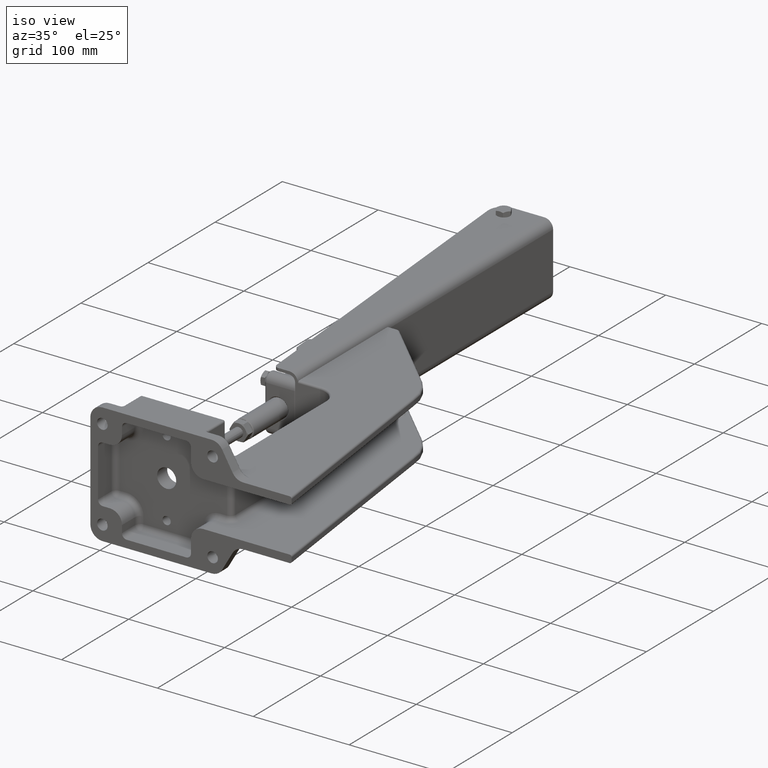
[diagram: clean part render]
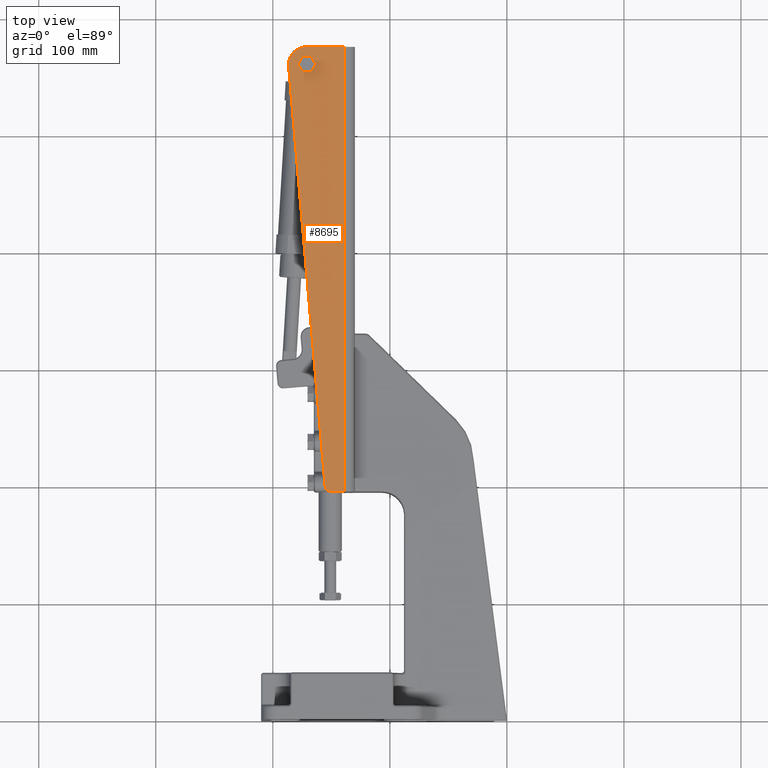
[diagram: tour spotlight — one face highlighted and labeled with its STEP entity id]
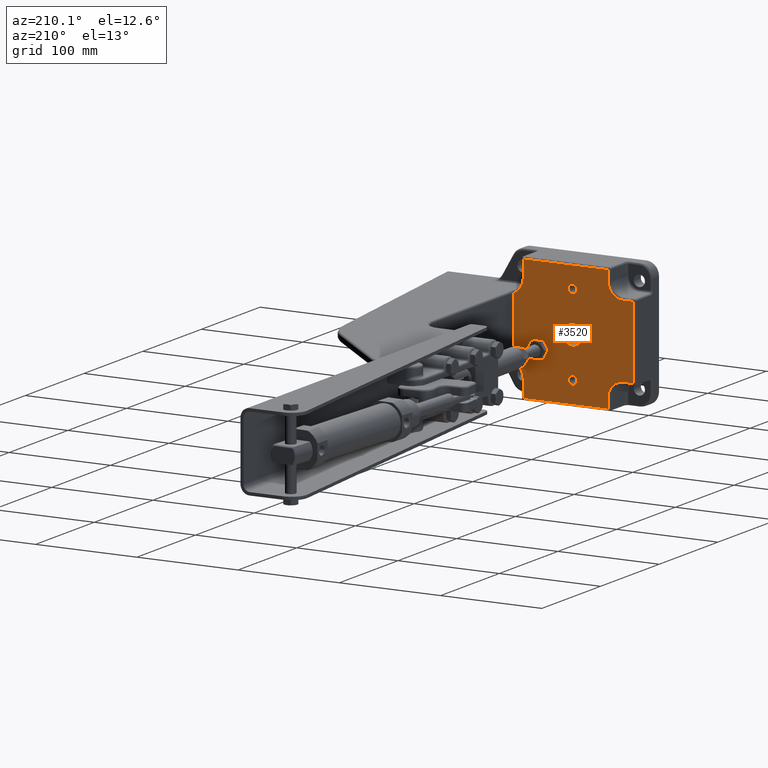
[diagram: tour spotlight — one face highlighted and labeled with its STEP entity id]
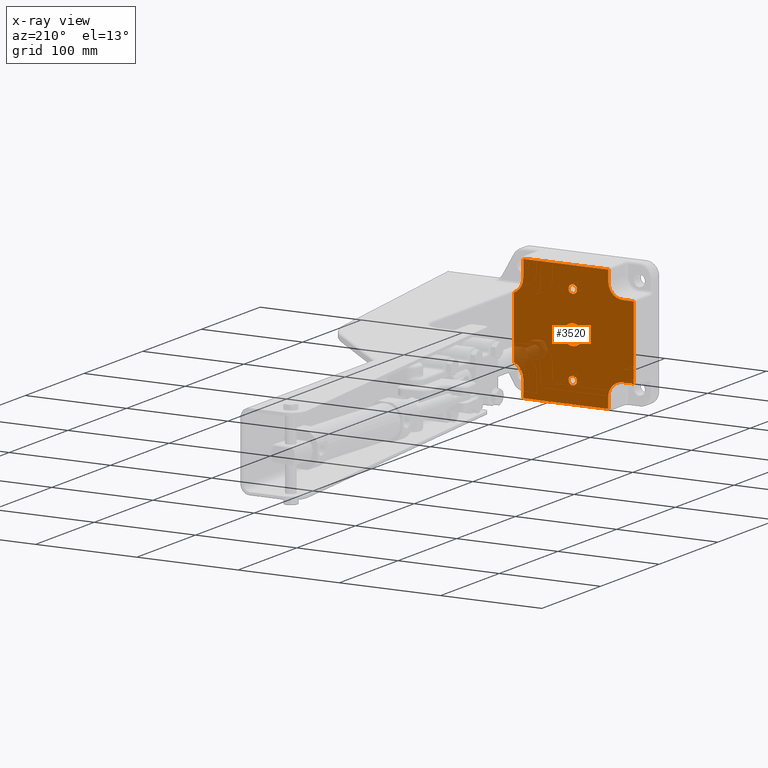
[diagram: x-ray of the same camera — body ghosted, this tour face saturated]
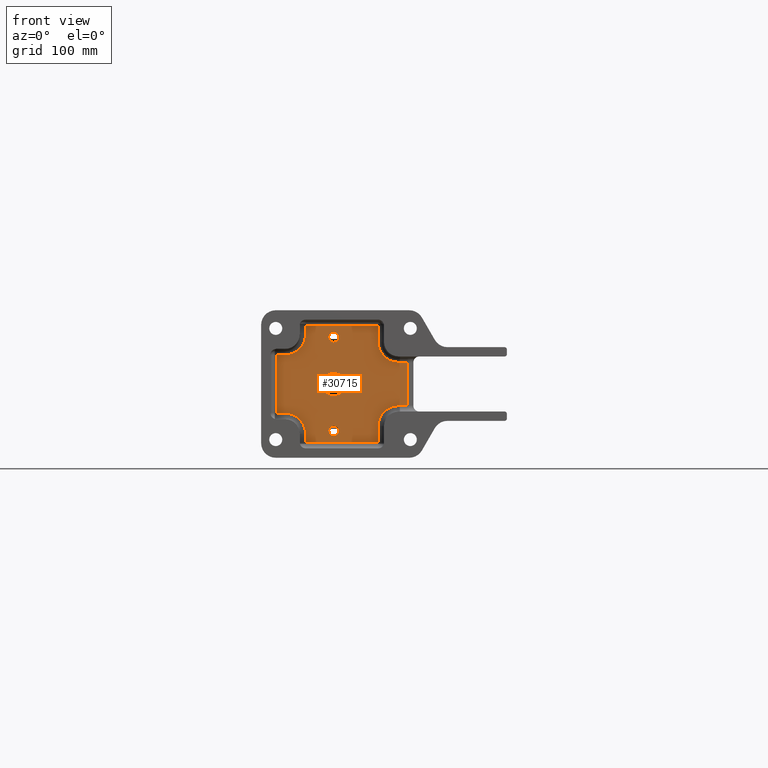
[diagram: tour spotlight — one face highlighted and labeled with its STEP entity id]
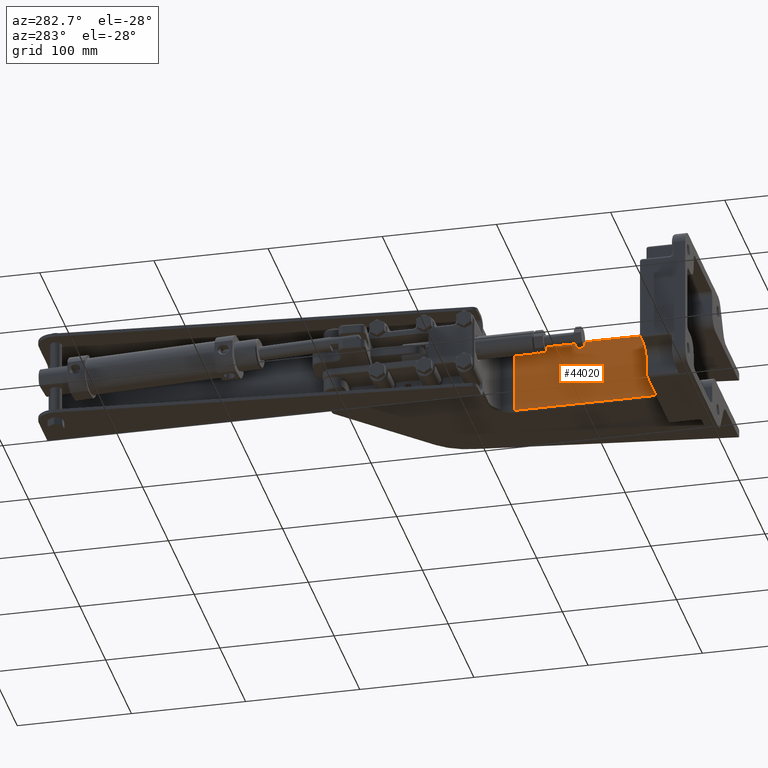
[diagram: tour spotlight — one face highlighted and labeled with its STEP entity id]
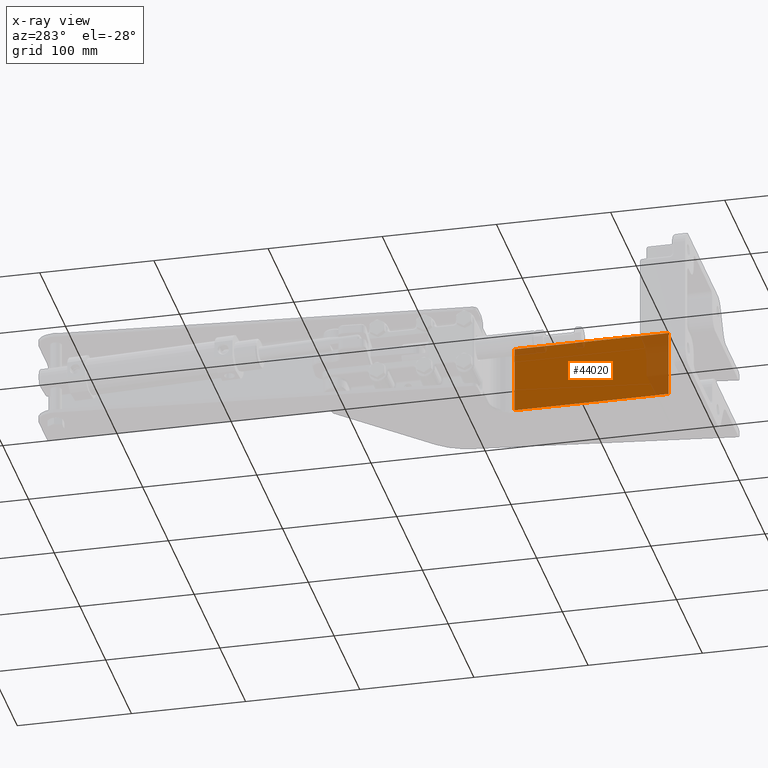
[diagram: x-ray of the same camera — body ghosted, this tour face saturated]
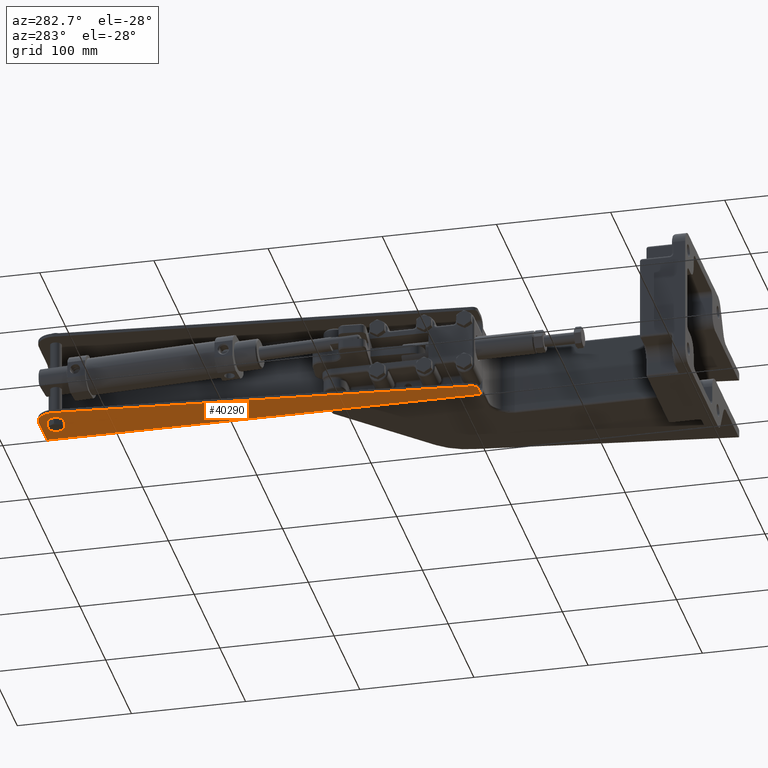
[diagram: tour spotlight — one face highlighted and labeled with its STEP entity id]
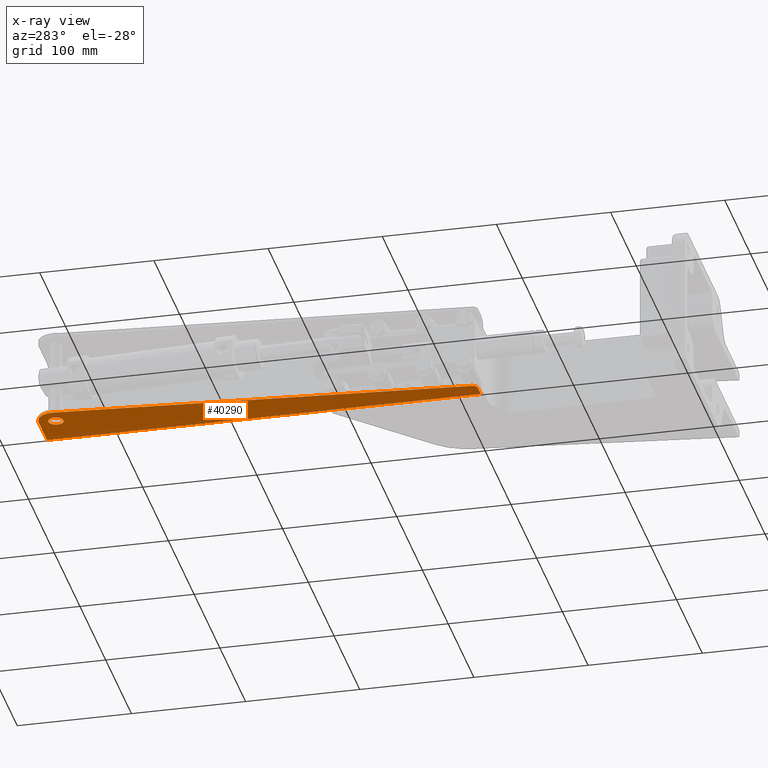
[diagram: x-ray of the same camera — body ghosted, this tour face saturated]
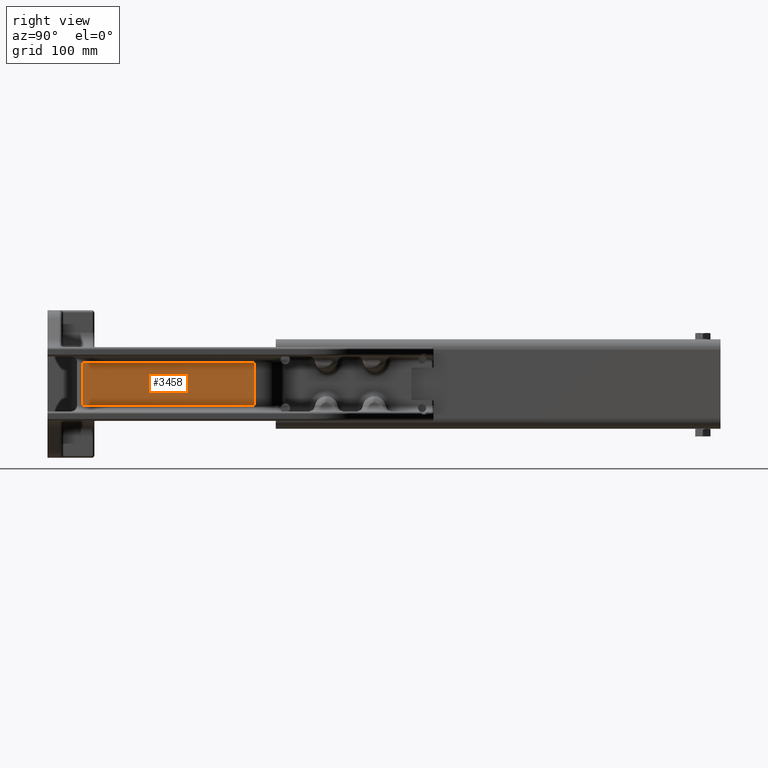
[diagram: tour spotlight — one face highlighted and labeled with its STEP entity id]
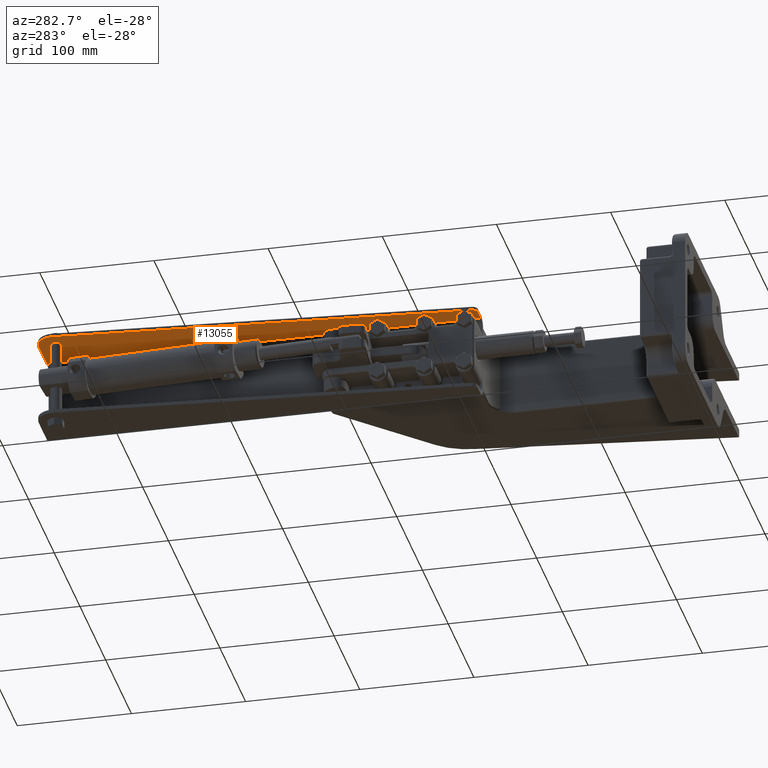
[diagram: tour spotlight — one face highlighted and labeled with its STEP entity id]
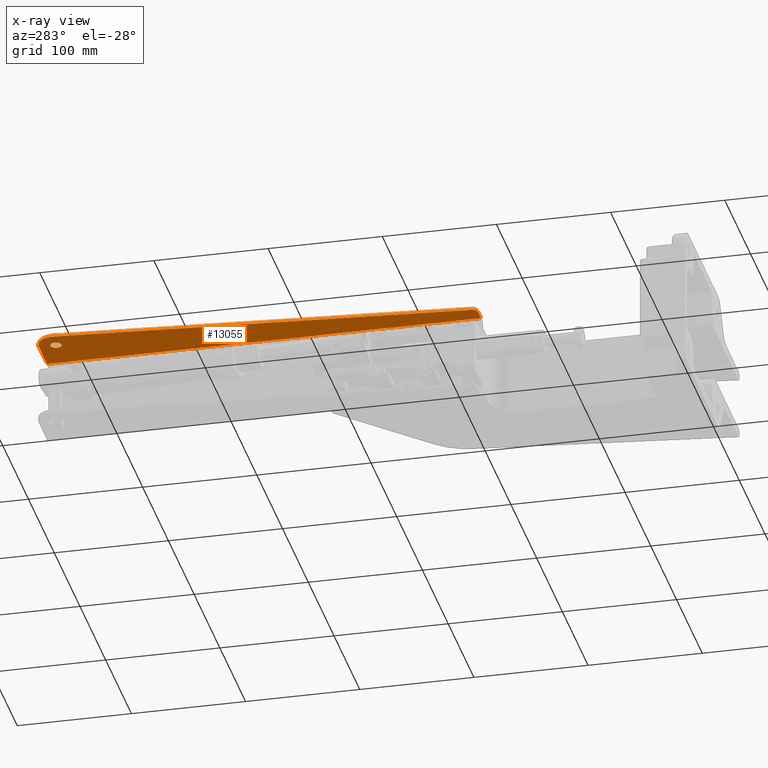
[diagram: x-ray of the same camera — body ghosted, this tour face saturated]
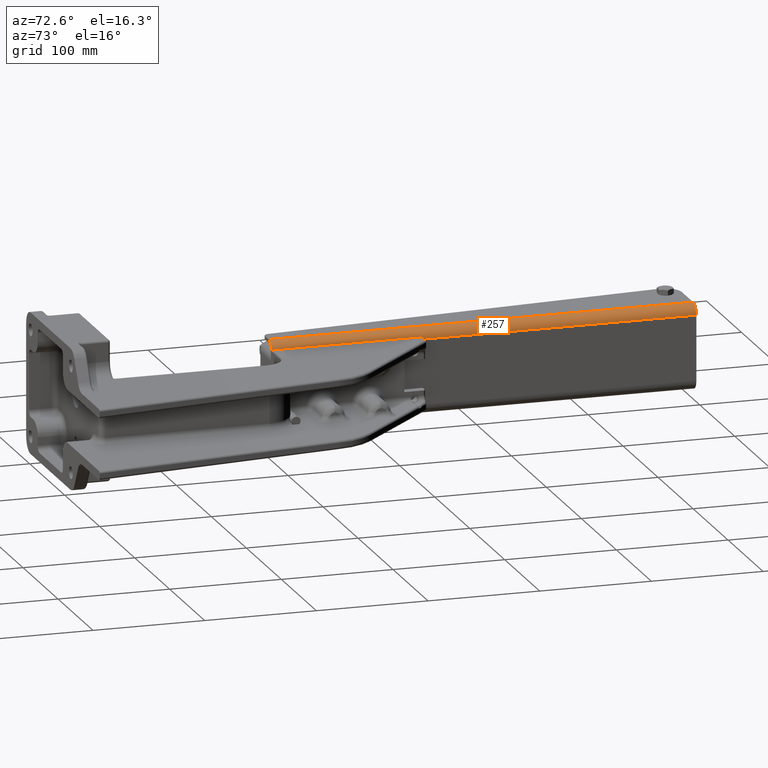
[diagram: tour spotlight — one face highlighted and labeled with its STEP entity id]
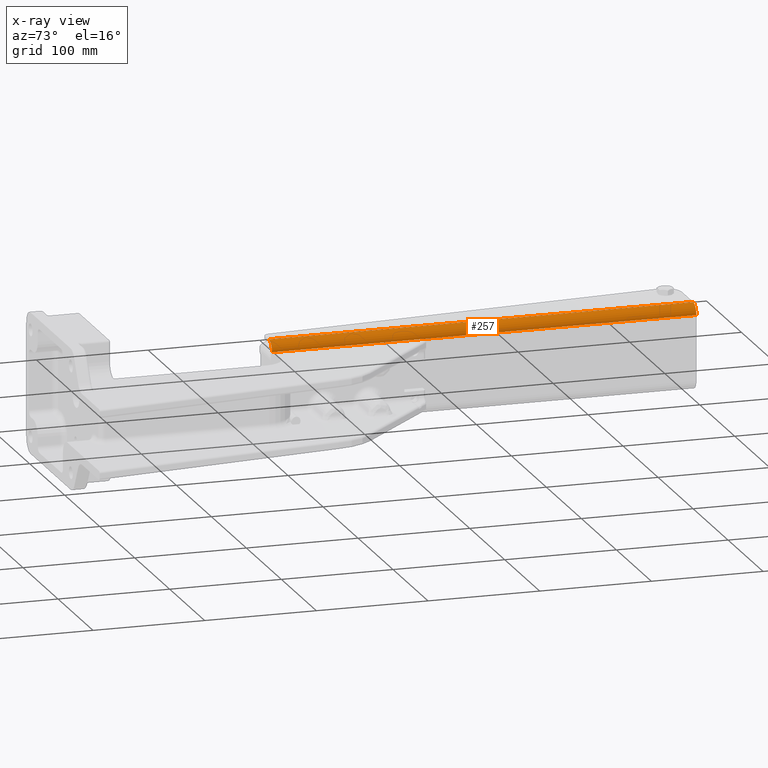
[diagram: x-ray of the same camera — body ghosted, this tour face saturated]
A machine part: a face-by-face anatomy tour. The part has 1083 B-rep faces; the first image is the clean iso view, then the 8 largest visible faces are spotlighted one at a time (largest first), each with its STEP entity span.

Face 1 — top view, entity #8695. In plain terms, the highlighted planar face has unit normal (0, 0, 1).
Definition (entity closure, byte-faithful):
#1106 = CIRCLE ( 'NONE', #51654, 4.999999999999997300 ) ;
#1389 = EDGE_CURVE ( 'NONE', #25793, #52890, #8306, .T. ) ;
#2242 = ORIENTED_EDGE ( 'NONE', *, *, #26205, .F. ) ;
#3013 = DIRECTION ( 'NONE',  ( -0.0000000000000000000, 0.0000000000000000000, 1.000000000000000000 ) ) ;
#3316 = ORIENTED_EDGE ( 'NONE', *, *, #29453, .F. ) ;
#3901 = VECTOR ( 'NONE', #38687, 1000.000000000000000 ) ;
#4612 = ORIENTED_EDGE ( 'NONE', *, *, #1389, .T. ) ;
#5593 = CARTESIAN_POINT ( 'NONE',  ( -67.50000000000000000, 17.41539206200000200, 38.00000000000001400 ) ) ;
#6042 = CARTESIAN_POINT ( 'NONE',  ( 296.2022527456877000, 53.58466931726742600, 38.00000000000001400 ) ) ;
#6224 = ORIENTED_EDGE ( 'NONE', *, *, #38440, .F. ) ;
#6830 = ORIENTED_EDGE ( 'NONE', *, *, #9872, .T. ) ;
#6881 = FACE_BOUND ( 'NONE', #23465, .T. ) ;
#8306 = CIRCLE ( 'NONE', #19569, 15.00000000000001400 ) ;
#8695 = ADVANCED_FACE ( 'NONE', ( #38804, #6881 ), #41646, .T. ) ;
#9872 = EDGE_CURVE ( 'NONE', #26719, #22219, #1106, .T. ) ;
#9975 = CARTESIAN_POINT ( 'NONE',  ( -62.50000000000000000, 17.41539206200000200, 38.00000000000001400 ) ) ;
#10277 = LINE ( 'NONE', #38326, #42264 ) ;
#12452 = CARTESIAN_POINT ( 'NONE',  ( -67.50000000000000000, 5.999999998154069500, 38.00000000000002100 ) ) ;
#14127 = DIRECTION ( 'NONE',  ( 1.000000000000000000, 0.0000000000000000000, 0.0000000000000000000 ) ) ;
#15443 = DIRECTION ( 'NONE',  ( -0.0000000000000000000, 0.0000000000000000000, 1.000000000000000000 ) ) ;
#16591 = ORIENTED_EDGE ( 'NONE', *, *, #27246, .T. ) ;
#17559 = CIRCLE ( 'NONE', #37268, 6.500000000000005300 ) ;
#18650 = ORIENTED_EDGE ( 'NONE', *, *, #18688, .T. ) ;
#18675 = VERTEX_POINT ( 'NONE', #38311 ) ;
#18688 = EDGE_CURVE ( 'NONE', #52890, #26719, #37104, .T. ) ;
#19569 = AXIS2_PLACEMENT_3D ( 'NONE', #27957, #3013, #32100 ) ;
#20445 = CARTESIAN_POINT ( 'NONE',  ( -67.50000000000000000, 53.92675850499999500, 38.00000000000001400 ) ) ;
#20808 = DIRECTION ( 'NONE',  ( 0.0000000000000000000, -1.000000000000000000, 0.0000000000000000000 ) ) ;
#20990 = DIRECTION ( 'NONE',  ( -0.0000000000000000000, -1.000000000000000000, -0.0000000000000000000 ) ) ;
#22219 = VERTEX_POINT ( 'NONE', #5593 ) ;
#22380 = VECTOR ( 'NONE', #20990, 1000.000000000000000 ) ;
#22901 = CARTESIAN_POINT ( 'NONE',  ( 297.5000000000000000, 38.00000000000000000, 38.00000000000001400 ) ) ;
#23465 = EDGE_LOOP ( 'NONE', ( #2242, #3316 ) ) ;
#24624 = VECTOR ( 'NONE', #42155, 1000.000000000000000 ) ;
#25793 = VERTEX_POINT ( 'NONE', #53434 ) ;
#26205 = EDGE_CURVE ( 'NONE', #32477, #18675, #17559, .T. ) ;
#26719 = VERTEX_POINT ( 'NONE', #27028 ) ;
#26763 = VERTEX_POINT ( 'NONE', #39811 ) ;
#27028 = CARTESIAN_POINT ( 'NONE',  ( -62.93258241807542000, 22.39664415842498000, 38.00000000000001400 ) ) ;
#27086 = DIRECTION ( 'NONE',  ( 1.000000000000000000, 0.0000000000000000000, 0.0000000000000000000 ) ) ;
#27246 = EDGE_CURVE ( 'NONE', #22219, #47416, #46879, .T. ) ;
#27957 = CARTESIAN_POINT ( 'NONE',  ( 297.5000000000000000, 38.64091302699999600, 38.00000000000001400 ) ) ;
#29374 = CARTESIAN_POINT ( 'NONE',  ( 312.5000000000000000, 22.32045651350000200, 38.00000000000001400 ) ) ;
#29453 = EDGE_CURVE ( 'NONE', #18675, #32477, #41299, .T. ) ;
#29885 = CARTESIAN_POINT ( 'NONE',  ( 116.6348351620000200, 37.99065673749999700, 38.00000000000001400 ) ) ;
#30188 = CARTESIAN_POINT ( 'NONE',  ( 304.0000000000000000, 38.00000000000000000, 38.00000000000001400 ) ) ;
#31795 = AXIS2_PLACEMENT_3D ( 'NONE', #40481, #15443, #44692 ) ;
#32100 = DIRECTION ( 'NONE',  ( 1.000000000000000000, 0.0000000000000000000, 0.0000000000000000000 ) ) ;
#32477 = VERTEX_POINT ( 'NONE', #30188 ) ;
#33445 = LINE ( 'NONE', #29374, #22380 ) ;
#35182 = ORIENTED_EDGE ( 'NONE', *, *, #54105, .T. ) ;
#37104 = LINE ( 'NONE', #29885, #3901 ) ;
#37268 = AXIS2_PLACEMENT_3D ( 'NONE', #22901, #52108, #27086 ) ;
#37919 = CARTESIAN_POINT ( 'NONE',  ( -67.50000000000000000, 11.70769603100000100, 38.00000000000001400 ) ) ;
#38311 = CARTESIAN_POINT ( 'NONE',  ( 291.0000000000000000, 38.00000000000000000, 38.00000000000001400 ) ) ;
#38326 = CARTESIAN_POINT ( 'NONE',  ( 122.5000000000000000, 5.999999996308138100, 38.00000000000001400 ) ) ;
#38440 = EDGE_CURVE ( 'NONE', #25793, #26763, #33445, .T. ) ;
#38687 = DIRECTION ( 'NONE',  ( -0.9962504193391517000, -0.08651648378525599000, -0.0000000000000000000 ) ) ;
#38804 = FACE_OUTER_BOUND ( 'NONE', #50814, .T. ) ;
#38998 = AXIS2_PLACEMENT_3D ( 'NONE', #20445, #45856, #20808 ) ;
#39134 = DIRECTION ( 'NONE',  ( 0.0000000000000000000, 0.0000000000000000000, 1.000000000000000000 ) ) ;
#39811 = CARTESIAN_POINT ( 'NONE',  ( 312.5000000000000000, 5.999999998154069500, 38.00000000000002100 ) ) ;
#40481 = CARTESIAN_POINT ( 'NONE',  ( 297.5000000000000000, 38.00000000000000000, 38.00000000000001400 ) ) ;
#41299 = CIRCLE ( 'NONE', #31795, 6.500000000000005300 ) ;
#41646 = PLANE ( 'NONE',  #38998 ) ;
#42155 = DIRECTION ( 'NONE',  ( -0.0000000000000000000, -1.000000000000000000, -0.0000000000000000000 ) ) ;
#42264 = VECTOR ( 'NONE', #46771, 1000.000000000000000 ) ;
#44692 = DIRECTION ( 'NONE',  ( 1.000000000000000000, 0.0000000000000000000, 0.0000000000000000000 ) ) ;
#45856 = DIRECTION ( 'NONE',  ( -0.0000000000000000000, 0.0000000000000000000, 1.000000000000000000 ) ) ;
#46771 = DIRECTION ( 'NONE',  ( 1.000000000000000000, 0.0000000000000000000, 0.0000000000000000000 ) ) ;
#46879 = LINE ( 'NONE', #37919, #24624 ) ;
#47416 = VERTEX_POINT ( 'NONE', #12452 ) ;
#50814 = EDGE_LOOP ( 'NONE', ( #16591, #35182, #6224, #4612, #18650, #6830 ) ) ;
#51654 = AXIS2_PLACEMENT_3D ( 'NONE', #9975, #39134, #14127 ) ;
#52108 = DIRECTION ( 'NONE',  ( -0.0000000000000000000, 0.0000000000000000000, 1.000000000000000000 ) ) ;
#52890 = VERTEX_POINT ( 'NONE', #6042 ) ;
#53434 = CARTESIAN_POINT ( 'NONE',  ( 312.5000000000000000, 38.64091302699999600, 38.00000000000001400 ) ) ;
#54105 = EDGE_CURVE ( 'NONE', #47416, #26763, #10277, .T. ) ;

Face 2 — auxiliary view, entity #3520. An x-ray twin of the same camera follows (body ghosted, this face saturated) — the face is partly hidden behind the body. In plain terms, the highlighted planar face has unit normal (0, 1, 0).
Definition (entity closure, byte-faithful):
#112 = DIRECTION ( 'NONE',  ( -1.000000000000000000, -0.0000000000000000000, -0.0000000000000000000 ) ) ;
#146 = CARTESIAN_POINT ( 'NONE',  ( -147.9185700000003300, 39.99999795431069300, -44.25000000000003600 ) ) ;
#284 = CARTESIAN_POINT ( 'NONE',  ( -147.9185700000003300, 39.99999795431069300, 0.0000000000000000000 ) ) ;
#327 = DIRECTION ( 'NONE',  ( 0.0000000000000000000, 0.0000000000000000000, 1.000000000000000000 ) ) ;
#918 = VERTEX_POINT ( 'NONE', #36268 ) ;
#1287 = CARTESIAN_POINT ( 'NONE',  ( -98.99999999999988600, 39.99999795431069300, -44.00000000000004300 ) ) ;
#1595 = CARTESIAN_POINT ( 'NONE',  ( -99.00000000000000000, 39.99999795431069300, 0.0000000000000000000 ) ) ;
#2075 = CIRCLE ( 'NONE', #11393, 4.250000000000003600 ) ;
#2343 = CARTESIAN_POINT ( 'NONE',  ( -147.9185700000003300, 39.99999795431069300, 0.0000000000000000000 ) ) ;
#2482 = DIRECTION ( 'NONE',  ( 0.0000000000000000000, 0.0000000000000000000, 1.000000000000000000 ) ) ;
#2483 = ORIENTED_EDGE ( 'NONE', *, *, #36012, .T. ) ;
#2718 = VERTEX_POINT ( 'NONE', #1287 ) ;
#2810 = DIRECTION ( 'NONE',  ( -0.0000000000000000000, -0.0000000000000000000, -1.000000000000000000 ) ) ;
#3176 = EDGE_CURVE ( 'NONE', #19521, #41560, #27036, .T. ) ;
#3185 = EDGE_CURVE ( 'NONE', #14928, #46049, #12043, .T. ) ;
#3520 = ADVANCED_FACE ( 'NONE', ( #42682, #21732, #53763, #31482 ), #39726, .T. ) ;
#3626 = CIRCLE ( 'NONE', #14651, 9.999999999999881000 ) ;
#3813 = EDGE_CURVE ( 'NONE', #14354, #38209, #13208, .T. ) ;
#4322 = CIRCLE ( 'NONE', #20519, 4.250000000000003600 ) ;
#4411 = VERTEX_POINT ( 'NONE', #44625 ) ;
#4496 = DIRECTION ( 'NONE',  ( 0.0000000000000000000, 0.0000000000000000000, -1.000000000000000000 ) ) ;
#4540 = CARTESIAN_POINT ( 'NONE',  ( -147.9185700000003300, 39.99999795431069300, 9.999999999999881000 ) ) ;
#6156 = ORIENTED_EDGE ( 'NONE', *, *, #44467, .F. ) ;
#6344 = AXIS2_PLACEMENT_3D ( 'NONE', #14496, #43743, #18691 ) ;
#6527 = ORIENTED_EDGE ( 'NONE', *, *, #17658, .T. ) ;
#6558 = DIRECTION ( 'NONE',  ( 0.0000000000000000000, 0.0000000000000000000, -1.000000000000000000 ) ) ;
#6664 = VECTOR ( 'NONE', #50800, 1000.000000000000000 ) ;
#6763 = EDGE_CURVE ( 'NONE', #43205, #13652, #36479, .T. ) ;
#6768 = ORIENTED_EDGE ( 'NONE', *, *, #32297, .F. ) ;
#7117 = CARTESIAN_POINT ( 'NONE',  ( -197.4999999999999400, 39.99999795431068600, 35.99999999999976600 ) ) ;
#7525 = DIRECTION ( 'NONE',  ( 0.0000000000000000000, 0.0000000000000000000, 1.000000000000000000 ) ) ;
#7756 = CARTESIAN_POINT ( 'NONE',  ( -141.0000000000000000, 39.99999795431069300, -61.00000000000009900 ) ) ;
#7974 = ORIENTED_EDGE ( 'NONE', *, *, #46638, .T. ) ;
#8008 = ORIENTED_EDGE ( 'NONE', *, *, #41332, .T. ) ;
#8529 = CARTESIAN_POINT ( 'NONE',  ( -89.79145333427924000, 39.99999795431070000, 30.49998068108271500 ) ) ;
#8590 = CARTESIAN_POINT ( 'NONE',  ( -147.9185700000003300, 39.99999795431069300, -40.00000000000002800 ) ) ;
#9179 = DIRECTION ( 'NONE',  ( 0.0000000000000000000, 0.0000000000000000000, 1.000000000000000000 ) ) ;
#10096 = CARTESIAN_POINT ( 'NONE',  ( -208.0000000000001100, 39.99999795431069300, -35.99999999999981500 ) ) ;
#10398 = EDGE_CURVE ( 'NONE', #35474, #46180, #4322, .T. ) ;
#10600 = CARTESIAN_POINT ( 'NONE',  ( -197.4999999999999400, 39.99999795431066500, 50.49999999999989300 ) ) ;
#11117 = DIRECTION ( 'NONE',  ( 0.0000000000000000000, -1.000000000000000000, -0.0000000000000000000 ) ) ;
#11188 = CARTESIAN_POINT ( 'NONE',  ( -147.9185700000003300, 39.99999795431069300, 40.00000000000002800 ) ) ;
#11393 = AXIS2_PLACEMENT_3D ( 'NONE', #8590, #37729, #12756 ) ;
#12043 = CIRCLE ( 'NONE', #42061, 9.999999999999881000 ) ;
#12500 = VERTEX_POINT ( 'NONE', #7117 ) ;
#12756 = DIRECTION ( 'NONE',  ( 0.0000000000000000000, 0.0000000000000000000, 1.000000000000000000 ) ) ;
#13208 = LINE ( 'NONE', #28907, #24305 ) ;
#13546 = CARTESIAN_POINT ( 'NONE',  ( -197.4999999999999400, 39.99999795431069300, -35.99999999999960900 ) ) ;
#13652 = VERTEX_POINT ( 'NONE', #46597 ) ;
#14005 = AXIS2_PLACEMENT_3D ( 'NONE', #10600, #17541, #9179 ) ;
#14354 = VERTEX_POINT ( 'NONE', #13546 ) ;
#14496 = CARTESIAN_POINT ( 'NONE',  ( -85.91846500000014000, 39.99999795431080700, 29.50000000000008900 ) ) ;
#14651 = AXIS2_PLACEMENT_3D ( 'NONE', #284, #29419, #4496 ) ;
#14928 = VERTEX_POINT ( 'NONE', #49842 ) ;
#15332 = DIRECTION ( 'NONE',  ( 0.0000000000000000000, 0.0000000000000000000, 1.000000000000000000 ) ) ;
#15445 = VECTOR ( 'NONE', #24937, 1000.000000000000000 ) ;
#15483 = ORIENTED_EDGE ( 'NONE', *, *, #29381, .T. ) ;
#15736 = VERTEX_POINT ( 'NONE', #8529 ) ;
#16802 = VERTEX_POINT ( 'NONE', #40440 ) ;
#17321 = EDGE_CURVE ( 'NONE', #12500, #26001, #19710, .T. ) ;
#17333 = CARTESIAN_POINT ( 'NONE',  ( -84.49999999999954500, 39.99999795431077100, 44.00000000000004300 ) ) ;
#17541 = DIRECTION ( 'NONE',  ( -0.0000000000000000000, -1.000000000000000000, -0.0000000000000000000 ) ) ;
#17658 = EDGE_CURVE ( 'NONE', #4411, #50311, #22282, .T. ) ;
#18287 = VERTEX_POINT ( 'NONE', #22292 ) ;
#18431 = VECTOR ( 'NONE', #27331, 1000.000000000000000 ) ;
#18691 = DIRECTION ( 'NONE',  ( 0.0000000000000000000, 0.0000000000000000000, 1.000000000000000000 ) ) ;
#18970 = EDGE_LOOP ( 'NONE', ( #40656, #35690 ) ) ;
#19521 = VERTEX_POINT ( 'NONE', #36916 ) ;
#19710 = CIRCLE ( 'NONE', #14005, 14.49999999999981900 ) ;
#20211 = EDGE_CURVE ( 'NONE', #15736, #50311, #25873, .T. ) ;
#20519 = AXIS2_PLACEMENT_3D ( 'NONE', #52444, #27434, #2482 ) ;
#20758 = CARTESIAN_POINT ( 'NONE',  ( -141.0000000000000000, 39.99999795431069300, 61.00000000000009900 ) ) ;
#20972 = CARTESIAN_POINT ( 'NONE',  ( -85.91846500000014000, 39.99999795431069300, -29.50000000000008900 ) ) ;
#21530 = DIRECTION ( 'NONE',  ( 0.0000000000000000000, 0.0000000000000000000, 1.000000000000000000 ) ) ;
#21732 = FACE_BOUND ( 'NONE', #38881, .T. ) ;
#21973 = EDGE_CURVE ( 'NONE', #43205, #48183, #28882, .T. ) ;
#22153 = LINE ( 'NONE', #28458, #43098 ) ;
#22282 = LINE ( 'NONE', #1595, #43234 ) ;
#22292 = CARTESIAN_POINT ( 'NONE',  ( -89.79145333427919700, 39.99999795431070000, -30.49998068108266500 ) ) ;
#22918 = DIRECTION ( 'NONE',  ( -0.0000000000000000000, 1.000000000000000000, -0.0000000000000000000 ) ) ;
#23135 = CARTESIAN_POINT ( 'NONE',  ( -148.5411010271425900, 39.99999795431069300, 35.99999999999948800 ) ) ;
#23282 = CARTESIAN_POINT ( 'NONE',  ( -208.0000000000001100, 39.99999795431069300, -61.00000000000009900 ) ) ;
#23358 = VERTEX_POINT ( 'NONE', #49919 ) ;
#24300 = DIRECTION ( 'NONE',  ( 1.000000000000000000, 0.0000000000000000000, 0.0000000000000000000 ) ) ;
#24305 = VECTOR ( 'NONE', #112, 1000.000000000000000 ) ;
#24937 = DIRECTION ( 'NONE',  ( -1.000000000000000000, 0.0000000000000000000, 0.0000000000000000000 ) ) ;
#25150 = DIRECTION ( 'NONE',  ( -3.469446951953587400E-015, 0.0000000000000000000, 1.000000000000000000 ) ) ;
#25239 = AXIS2_PLACEMENT_3D ( 'NONE', #47930, #22918, #52126 ) ;
#25254 = ORIENTED_EDGE ( 'NONE', *, *, #25939, .F. ) ;
#25275 = DIRECTION ( 'NONE',  ( 0.0000000000000000000, 1.000000000000000000, 0.0000000000000000000 ) ) ;
#25873 = CIRCLE ( 'NONE', #36845, 14.49999999999975000 ) ;
#25939 = EDGE_CURVE ( 'NONE', #2718, #18287, #48942, .T. ) ;
#26001 = VERTEX_POINT ( 'NONE', #37865 ) ;
#26384 = CARTESIAN_POINT ( 'NONE',  ( -182.9999999999999400, 39.99999795431068600, -50.49999999999992200 ) ) ;
#26546 = ORIENTED_EDGE ( 'NONE', *, *, #3813, .T. ) ;
#26666 = LINE ( 'NONE', #36649, #47608 ) ;
#27036 = CIRCLE ( 'NONE', #25239, 4.250000000000003600 ) ;
#27331 = DIRECTION ( 'NONE',  ( 1.000000000000000000, 0.0000000000000000000, 0.0000000000000000000 ) ) ;
#27434 = DIRECTION ( 'NONE',  ( -0.0000000000000000000, 1.000000000000000000, -0.0000000000000000000 ) ) ;
#27484 = DIRECTION ( 'NONE',  ( 0.0000000000000000000, 0.0000000000000000000, 1.000000000000000000 ) ) ;
#27758 = CARTESIAN_POINT ( 'NONE',  ( -99.00000000000000000, 39.99999795431069300, 0.0000000000000000000 ) ) ;
#28228 = AXIS2_PLACEMENT_3D ( 'NONE', #36060, #11117, #40297 ) ;
#28439 = EDGE_CURVE ( 'NONE', #46049, #14928, #3626, .T. ) ;
#28458 = CARTESIAN_POINT ( 'NONE',  ( -89.91846500000015400, 39.99999795431069300, 0.0000000000000000000 ) ) ;
#28797 = LINE ( 'NONE', #34328, #6664 ) ;
#28836 = EDGE_CURVE ( 'NONE', #2718, #13652, #51186, .T. ) ;
#28839 = EDGE_CURVE ( 'NONE', #46180, #35474, #30207, .T. ) ;
#28882 = LINE ( 'NONE', #33428, #49809 ) ;
#28907 = CARTESIAN_POINT ( 'NONE',  ( -148.5411010271425900, 39.99999795431069300, -35.99999999999947400 ) ) ;
#29358 = AXIS2_PLACEMENT_3D ( 'NONE', #11188, #40368, #15332 ) ;
#29381 = EDGE_CURVE ( 'NONE', #30009, #12500, #50434, .T. ) ;
#29419 = DIRECTION ( 'NONE',  ( 0.0000000000000000000, -1.000000000000000000, 0.0000000000000000000 ) ) ;
#30009 = VERTEX_POINT ( 'NONE', #37246 ) ;
#30207 = CIRCLE ( 'NONE', #29358, 4.250000000000003600 ) ;
#30504 = CARTESIAN_POINT ( 'NONE',  ( -147.9185700000003300, 39.99999795431069300, 35.75000000000002100 ) ) ;
#30654 = EDGE_LOOP ( 'NONE', ( #6156, #48922, #2483, #25254, #47478, #30794, #41012, #8008, #26546, #43272, #15483, #42787, #7974, #6768, #6527, #35026 ) ) ;
#30794 = ORIENTED_EDGE ( 'NONE', *, *, #6763, .F. ) ;
#31331 = CIRCLE ( 'NONE', #6344, 4.000000000000017800 ) ;
#31423 = DIRECTION ( 'NONE',  ( 0.0000000000000000000, -1.000000000000000000, 0.0000000000000000000 ) ) ;
#31482 = FACE_OUTER_BOUND ( 'NONE', #30654, .T. ) ;
#31919 = CARTESIAN_POINT ( 'NONE',  ( -183.0000000000001100, 39.99999795431068600, -61.00000000000009900 ) ) ;
#32297 = EDGE_CURVE ( 'NONE', #4411, #918, #36328, .T. ) ;
#33428 = CARTESIAN_POINT ( 'NONE',  ( -183.0000000000001400, 39.99999795431069300, 0.0000000000000000000 ) ) ;
#34328 = CARTESIAN_POINT ( 'NONE',  ( -183.0000000000001400, 39.99999795431069300, 0.0000000000000000000 ) ) ;
#34330 = EDGE_CURVE ( 'NONE', #16802, #23358, #22153, .T. ) ;
#35026 = ORIENTED_EDGE ( 'NONE', *, *, #20211, .F. ) ;
#35474 = VERTEX_POINT ( 'NONE', #53563 ) ;
#35690 = ORIENTED_EDGE ( 'NONE', *, *, #28839, .F. ) ;
#36012 = EDGE_CURVE ( 'NONE', #16802, #18287, #40256, .T. ) ;
#36060 = CARTESIAN_POINT ( 'NONE',  ( -197.4999999999999400, 39.99999795431069300, -50.49999999999989300 ) ) ;
#36268 = CARTESIAN_POINT ( 'NONE',  ( -183.0000000000700600, 39.99999795431068600, 61.00000000000009900 ) ) ;
#36328 = LINE ( 'NONE', #20758, #15445 ) ;
#36479 = LINE ( 'NONE', #7756, #46343 ) ;
#36649 = CARTESIAN_POINT ( 'NONE',  ( -208.0000000000001100, 39.99999795431069300, 0.0000000000000000000 ) ) ;
#36845 = AXIS2_PLACEMENT_3D ( 'NONE', #17333, #46576, #21530 ) ;
#36916 = CARTESIAN_POINT ( 'NONE',  ( -147.9185700000003300, 39.99999795431069300, -35.75000000000002100 ) ) ;
#37036 = ORIENTED_EDGE ( 'NONE', *, *, #39665, .F. ) ;
#37246 = CARTESIAN_POINT ( 'NONE',  ( -208.0000000000964100, 39.99999795431070000, 35.99999999999975100 ) ) ;
#37454 = DIRECTION ( 'NONE',  ( 0.0000000000000000000, 0.0000000000000000000, 1.000000000000000000 ) ) ;
#37729 = DIRECTION ( 'NONE',  ( -0.0000000000000000000, 1.000000000000000000, -0.0000000000000000000 ) ) ;
#37865 = CARTESIAN_POINT ( 'NONE',  ( -183.0000000000001400, 39.99999795431067900, 50.49999999999992200 ) ) ;
#38209 = VERTEX_POINT ( 'NONE', #10096 ) ;
#38881 = EDGE_LOOP ( 'NONE', ( #42644, #37036 ) ) ;
#38957 = DIRECTION ( 'NONE',  ( -0.0000000000000000000, -0.0000000000000000000, -1.000000000000000000 ) ) ;
#39665 = EDGE_CURVE ( 'NONE', #41560, #19521, #2075, .T. ) ;
#39726 = PLANE ( 'NONE',  #42800 ) ;
#40067 = VECTOR ( 'NONE', #2810, 1000.000000000000000 ) ;
#40256 = CIRCLE ( 'NONE', #47193, 4.000000000000031100 ) ;
#40297 = DIRECTION ( 'NONE',  ( 0.0000000000000000000, 0.0000000000000000000, 1.000000000000000000 ) ) ;
#40368 = DIRECTION ( 'NONE',  ( -0.0000000000000000000, 1.000000000000000000, -0.0000000000000000000 ) ) ;
#40440 = CARTESIAN_POINT ( 'NONE',  ( -89.91846500000016800, 39.99999795431072200, -29.50000000000009900 ) ) ;
#40616 = ORIENTED_EDGE ( 'NONE', *, *, #28439, .T. ) ;
#40656 = ORIENTED_EDGE ( 'NONE', *, *, #10398, .F. ) ;
#40892 = DIRECTION ( 'NONE',  ( 0.0000000000000000000, 0.0000000000000000000, -1.000000000000000000 ) ) ;
#41012 = ORIENTED_EDGE ( 'NONE', *, *, #21973, .T. ) ;
#41332 = EDGE_CURVE ( 'NONE', #48183, #14354, #52057, .T. ) ;
#41560 = VERTEX_POINT ( 'NONE', #146 ) ;
#42061 = AXIS2_PLACEMENT_3D ( 'NONE', #2343, #31423, #6558 ) ;
#42644 = ORIENTED_EDGE ( 'NONE', *, *, #3176, .F. ) ;
#42682 = FACE_BOUND ( 'NONE', #18970, .T. ) ;
#42743 = CARTESIAN_POINT ( 'NONE',  ( -98.99999999999982900, 39.99999795431071400, 44.00000000000004300 ) ) ;
#42787 = ORIENTED_EDGE ( 'NONE', *, *, #17321, .T. ) ;
#42800 = AXIS2_PLACEMENT_3D ( 'NONE', #23282, #52496, #27484 ) ;
#43098 = VECTOR ( 'NONE', #7525, 1000.000000000000000 ) ;
#43205 = VERTEX_POINT ( 'NONE', #31919 ) ;
#43234 = VECTOR ( 'NONE', #38957, 1000.000000000000000 ) ;
#43272 = ORIENTED_EDGE ( 'NONE', *, *, #45270, .F. ) ;
#43486 = ORIENTED_EDGE ( 'NONE', *, *, #3185, .T. ) ;
#43743 = DIRECTION ( 'NONE',  ( 0.0000000000000000000, 1.000000000000000000, 0.0000000000000000000 ) ) ;
#44467 = EDGE_CURVE ( 'NONE', #23358, #15736, #31331, .T. ) ;
#44625 = CARTESIAN_POINT ( 'NONE',  ( -99.00000000000000000, 39.99999795431069300, 61.00000000000009900 ) ) ;
#45270 = EDGE_CURVE ( 'NONE', #30009, #38209, #26666, .T. ) ;
#46049 = VERTEX_POINT ( 'NONE', #4540 ) ;
#46180 = VERTEX_POINT ( 'NONE', #30504 ) ;
#46343 = VECTOR ( 'NONE', #24300, 1000.000000000000000 ) ;
#46576 = DIRECTION ( 'NONE',  ( 0.0000000000000000000, 1.000000000000000000, -0.0000000000000000000 ) ) ;
#46597 = CARTESIAN_POINT ( 'NONE',  ( -99.00000000000000000, 39.99999795431069300, -61.00000000000009900 ) ) ;
#46638 = EDGE_CURVE ( 'NONE', #26001, #918, #28797, .T. ) ;
#47193 = AXIS2_PLACEMENT_3D ( 'NONE', #20972, #50198, #25150 ) ;
#47478 = ORIENTED_EDGE ( 'NONE', *, *, #28836, .T. ) ;
#47608 = VECTOR ( 'NONE', #40892, 1000.000000000000000 ) ;
#47930 = CARTESIAN_POINT ( 'NONE',  ( -147.9185700000003300, 39.99999795431069300, -40.00000000000002800 ) ) ;
#48183 = VERTEX_POINT ( 'NONE', #26384 ) ;
#48922 = ORIENTED_EDGE ( 'NONE', *, *, #34330, .F. ) ;
#48942 = CIRCLE ( 'NONE', #49554, 14.49999999999995700 ) ;
#49554 = AXIS2_PLACEMENT_3D ( 'NONE', #50298, #25275, #327 ) ;
#49809 = VECTOR ( 'NONE', #37454, 1000.000000000000000 ) ;
#49842 = CARTESIAN_POINT ( 'NONE',  ( -147.9185700000003300, 39.99999795431069300, -9.999999999999881000 ) ) ;
#49919 = CARTESIAN_POINT ( 'NONE',  ( -89.91846500000015400, 39.99999795431075000, 29.50000000000010300 ) ) ;
#50198 = DIRECTION ( 'NONE',  ( -0.0000000000000000000, -1.000000000000000000, -0.0000000000000000000 ) ) ;
#50298 = CARTESIAN_POINT ( 'NONE',  ( -84.49999999999955900, 39.99999795431070000, -44.00000000000004300 ) ) ;
#50311 = VERTEX_POINT ( 'NONE', #42743 ) ;
#50434 = LINE ( 'NONE', #23135, #18431 ) ;
#50800 = DIRECTION ( 'NONE',  ( 0.0000000000000000000, 0.0000000000000000000, 1.000000000000000000 ) ) ;
#51186 = LINE ( 'NONE', #27758, #40067 ) ;
#52057 = CIRCLE ( 'NONE', #28228, 14.50000000000042300 ) ;
#52126 = DIRECTION ( 'NONE',  ( 0.0000000000000000000, 0.0000000000000000000, 1.000000000000000000 ) ) ;
#52444 = CARTESIAN_POINT ( 'NONE',  ( -147.9185700000003300, 39.99999795431069300, 40.00000000000002800 ) ) ;
#52496 = DIRECTION ( 'NONE',  ( 0.0000000000000000000, 1.000000000000000000, 0.0000000000000000000 ) ) ;
#53563 = CARTESIAN_POINT ( 'NONE',  ( -147.9185700000003300, 39.99999795431069300, 44.25000000000003600 ) ) ;
#53640 = EDGE_LOOP ( 'NONE', ( #43486, #40616 ) ) ;
#53763 = FACE_BOUND ( 'NONE', #53640, .T. ) ;

Face 3 — front view, entity #30715. In plain terms, the highlighted planar face has unit normal (0, -1, 0).
Definition (entity closure, byte-faithful):
#311 = ORIENTED_EDGE ( 'NONE', *, *, #3508, .T. ) ;
#463 = CARTESIAN_POINT ( 'NONE',  ( -88.70923250000009800, 24.99999795431074600, 18.49999999999991800 ) ) ;
#550 = VERTEX_POINT ( 'NONE', #50560 ) ;
#735 = EDGE_CURVE ( 'NONE', #35315, #49006, #19469, .T. ) ;
#1060 = DIRECTION ( 'NONE',  ( 0.0000000000000000000, 0.0000000000000000000, -1.000000000000000000 ) ) ;
#1072 = EDGE_CURVE ( 'NONE', #34726, #43011, #26597, .T. ) ;
#1407 = VERTEX_POINT ( 'NONE', #53150 ) ;
#1606 = DIRECTION ( 'NONE',  ( -1.000000000000000000, -0.0000000000000000000, -0.0000000000000000000 ) ) ;
#1673 = ORIENTED_EDGE ( 'NONE', *, *, #28756, .T. ) ;
#1719 = CARTESIAN_POINT ( 'NONE',  ( -147.9185700000003300, 24.99999795431074600, -40.00000000000002800 ) ) ;
#2100 = VECTOR ( 'NONE', #27083, 1000.000000000000000 ) ;
#3349 = VERTEX_POINT ( 'NONE', #15765 ) ;
#3508 = EDGE_CURVE ( 'NONE', #28690, #45594, #20425, .T. ) ;
#3768 = VERTEX_POINT ( 'NONE', #24698 ) ;
#4219 = VERTEX_POINT ( 'NONE', #9435 ) ;
#4673 = CARTESIAN_POINT ( 'NONE',  ( -147.9185700000003300, 24.99999795431074600, -40.00000000000002800 ) ) ;
#4940 = VECTOR ( 'NONE', #12502, 1000.000000000000000 ) ;
#4965 = CARTESIAN_POINT ( 'NONE',  ( -172.0000000000001100, 24.99999795431066500, 42.49999999999985800 ) ) ;
#5604 = VERTEX_POINT ( 'NONE', #38546 ) ;
#5862 = CARTESIAN_POINT ( 'NONE',  ( -109.9999999999996700, 24.99999795431072500, 36.00000000000002100 ) ) ;
#5959 = DIRECTION ( 'NONE',  ( 0.0000000000000000000, 0.0000000000000000000, -1.000000000000000000 ) ) ;
#6582 = ORIENTED_EDGE ( 'NONE', *, *, #42641, .F. ) ;
#6930 = VERTEX_POINT ( 'NONE', #30619 ) ;
#7098 = DIRECTION ( 'NONE',  ( -1.000000000000000000, 0.0000000000000000000, 0.0000000000000000000 ) ) ;
#7410 = CARTESIAN_POINT ( 'NONE',  ( -147.9185700000003300, 24.99999795431074600, 35.75000000000003600 ) ) ;
#8465 = ORIENTED_EDGE ( 'NONE', *, *, #17179, .T. ) ;
#8610 = AXIS2_PLACEMENT_3D ( 'NONE', #51047, #26000, #1060 ) ;
#8805 = EDGE_CURVE ( 'NONE', #45594, #28690, #36161, .T. ) ;
#8822 = DIRECTION ( 'NONE',  ( 0.0000000000000000000, 0.0000000000000000000, -1.000000000000000000 ) ) ;
#8966 = CARTESIAN_POINT ( 'NONE',  ( -147.9185700000003300, 24.99999795431074600, 44.25000000000002100 ) ) ;
#8973 = DIRECTION ( 'NONE',  ( -0.0000000000000000000, 1.000000000000000000, -0.0000000000000000000 ) ) ;
#9435 = CARTESIAN_POINT ( 'NONE',  ( -109.9999999999998000, 24.99999795431070400, -36.00000000000002100 ) ) ;
#9968 = LINE ( 'NONE', #34996, #30766 ) ;
#10135 = VECTOR ( 'NONE', #7098, 1000.000000000000000 ) ;
#10170 = CARTESIAN_POINT ( 'NONE',  ( -196.9999999999999400, 24.99999795431071800, 25.00000000000001400 ) ) ;
#10258 = LINE ( 'NONE', #463, #20002 ) ;
#10466 = CARTESIAN_POINT ( 'NONE',  ( -92.50000000000009900, 24.99999795431074600, 36.00000000000002100 ) ) ;
#10792 = ORIENTED_EDGE ( 'NONE', *, *, #14118, .F. ) ;
#10977 = LINE ( 'NONE', #18178, #52755 ) ;
#11280 = VECTOR ( 'NONE', #18229, 1000.000000000000000 ) ;
#11439 = VERTEX_POINT ( 'NONE', #5862 ) ;
#11456 = LINE ( 'NONE', #36203, #10135 ) ;
#11653 = ORIENTED_EDGE ( 'NONE', *, *, #19635, .F. ) ;
#12339 = AXIS2_PLACEMENT_3D ( 'NONE', #42381, #17349, #46585 ) ;
#12502 = DIRECTION ( 'NONE',  ( 0.0000000000000000000, 0.0000000000000000000, -1.000000000000000000 ) ) ;
#13024 = DIRECTION ( 'NONE',  ( 1.000000000000000000, -0.0000000000000000000, -0.0000000000000000000 ) ) ;
#13204 = EDGE_LOOP ( 'NONE', ( #39808, #10792 ) ) ;
#13281 = CIRCLE ( 'NONE', #52816, 17.49999999999947400 ) ;
#13483 = LINE ( 'NONE', #27682, #34362 ) ;
#13993 = VERTEX_POINT ( 'NONE', #40904 ) ;
#14118 = EDGE_CURVE ( 'NONE', #53767, #51891, #48875, .T. ) ;
#14580 = CARTESIAN_POINT ( 'NONE',  ( -196.9999999999999100, 24.99999795431074600, 0.0000000000000000000 ) ) ;
#14614 = DIRECTION ( 'NONE',  ( 0.0000000000000000000, 0.0000000000000000000, 1.000000000000000000 ) ) ;
#14688 = CARTESIAN_POINT ( 'NONE',  ( -147.9185700000003300, 24.99999795431075000, 0.0000000000000000000 ) ) ;
#15019 = CARTESIAN_POINT ( 'NONE',  ( -92.50000000000005700, 24.99999795431070400, -18.49999999999991800 ) ) ;
#15765 = CARTESIAN_POINT ( 'NONE',  ( -172.0000000003859100, 24.99999795431070400, -49.99999999999992200 ) ) ;
#17090 = VERTEX_POINT ( 'NONE', #4965 ) ;
#17179 = EDGE_CURVE ( 'NONE', #3768, #17090, #22333, .T. ) ;
#17257 = EDGE_CURVE ( 'NONE', #6930, #4219, #9968, .T. ) ;
#17349 = DIRECTION ( 'NONE',  ( 0.0000000000000000000, -1.000000000000000000, 0.0000000000000000000 ) ) ;
#17943 = CARTESIAN_POINT ( 'NONE',  ( -147.9185700000003300, 24.99999795431074600, -44.25000000000002100 ) ) ;
#18178 = CARTESIAN_POINT ( 'NONE',  ( -140.9592325000000100, 24.99999795431074600, 49.99999999999990100 ) ) ;
#18229 = DIRECTION ( 'NONE',  ( 0.0000000000000000000, 0.0000000000000000000, -1.000000000000000000 ) ) ;
#18258 = ORIENTED_EDGE ( 'NONE', *, *, #29683, .F. ) ;
#18272 = VERTEX_POINT ( 'NONE', #51331 ) ;
#18520 = ORIENTED_EDGE ( 'NONE', *, *, #21812, .T. ) ;
#18894 = DIRECTION ( 'NONE',  ( 0.0000000000000000000, 0.0000000000000000000, -1.000000000000000000 ) ) ;
#19469 = LINE ( 'NONE', #14580, #30532 ) ;
#19509 = ORIENTED_EDGE ( 'NONE', *, *, #1072, .F. ) ;
#19522 = CARTESIAN_POINT ( 'NONE',  ( -92.50000000000009900, 24.99999795431065400, -36.00000000000002100 ) ) ;
#19568 = ORIENTED_EDGE ( 'NONE', *, *, #23875, .T. ) ;
#19635 = EDGE_CURVE ( 'NONE', #1407, #5604, #10258, .T. ) ;
#20002 = VECTOR ( 'NONE', #13024, 1000.000000000000000 ) ;
#20157 = FACE_BOUND ( 'NONE', #37274, .T. ) ;
#20331 = DIRECTION ( 'NONE',  ( -0.0000000000000000000, 1.000000000000000000, 0.0000000000000000000 ) ) ;
#20339 = AXIS2_PLACEMENT_3D ( 'NONE', #24487, #53723, #28701 ) ;
#20425 = CIRCLE ( 'NONE', #23184, 9.999999999999881000 ) ;
#20696 = LINE ( 'NONE', #40106, #42937 ) ;
#20757 = EDGE_CURVE ( 'NONE', #51891, #53767, #47404, .T. ) ;
#21465 = VECTOR ( 'NONE', #33184, 1000.000000000000000 ) ;
#21527 = CARTESIAN_POINT ( 'NONE',  ( -196.9999999999999100, 24.99999795431074600, 49.99999999999990100 ) ) ;
#21812 = EDGE_CURVE ( 'NONE', #23506, #43213, #23028, .T. ) ;
#22333 = LINE ( 'NONE', #47463, #11280 ) ;
#22478 = ORIENTED_EDGE ( 'NONE', *, *, #29920, .T. ) ;
#22574 = ORIENTED_EDGE ( 'NONE', *, *, #735, .T. ) ;
#22758 = CARTESIAN_POINT ( 'NONE',  ( -147.9185700000003300, 24.99999795431074600, -35.75000000000003600 ) ) ;
#22898 = CARTESIAN_POINT ( 'NONE',  ( -84.91846500000008300, 24.99999795431074600, 0.0000000000000000000 ) ) ;
#23028 = CIRCLE ( 'NONE', #39773, 17.49999999999979400 ) ;
#23124 = DIRECTION ( 'NONE',  ( -1.000000000000000000, -0.0000000000000000000, -0.0000000000000000000 ) ) ;
#23184 = AXIS2_PLACEMENT_3D ( 'NONE', #14688, #43951, #18894 ) ;
#23506 = VERTEX_POINT ( 'NONE', #38250 ) ;
#23721 = DIRECTION ( 'NONE',  ( 0.0000000000000000000, 0.0000000000000000000, 1.000000000000000000 ) ) ;
#23758 = CARTESIAN_POINT ( 'NONE',  ( -172.0000000000001400, 24.99999795431067500, -42.49999999999992900 ) ) ;
#23875 = EDGE_CURVE ( 'NONE', #43213, #3349, #36850, .T. ) ;
#24186 = CIRCLE ( 'NONE', #20339, 17.49999999999996800 ) ;
#24487 = CARTESIAN_POINT ( 'NONE',  ( -189.4999999999999700, 24.99999795431058300, 42.49999999999992900 ) ) ;
#24698 = CARTESIAN_POINT ( 'NONE',  ( -172.0000000000001400, 24.99999795431070700, 49.99999999999990100 ) ) ;
#25351 = PLANE ( 'NONE',  #50823 ) ;
#25704 = DIRECTION ( 'NONE',  ( 0.0000000000000000000, 0.0000000000000000000, -1.000000000000000000 ) ) ;
#26000 = DIRECTION ( 'NONE',  ( 0.0000000000000000000, -1.000000000000000000, 0.0000000000000000000 ) ) ;
#26068 = DIRECTION ( 'NONE',  ( 0.0000000000000000000, 0.0000000000000000000, -1.000000000000000000 ) ) ;
#26597 = CIRCLE ( 'NONE', #52459, 4.249999999999990200 ) ;
#27083 = DIRECTION ( 'NONE',  ( 0.0000000000000000000, 0.0000000000000000000, -1.000000000000000000 ) ) ;
#27511 = DIRECTION ( 'NONE',  ( 1.000000000000000000, 0.0000000000000000000, 0.0000000000000000000 ) ) ;
#27570 = EDGE_CURVE ( 'NONE', #3349, #6930, #13483, .T. ) ;
#27682 = CARTESIAN_POINT ( 'NONE',  ( -140.9592325000000100, 24.99999795431074600, -49.99999999999990100 ) ) ;
#28690 = VERTEX_POINT ( 'NONE', #51706 ) ;
#28701 = DIRECTION ( 'NONE',  ( 0.0000000000000000000, 0.0000000000000000000, 1.000000000000000000 ) ) ;
#28756 = EDGE_CURVE ( 'NONE', #1407, #11439, #13281, .T. ) ;
#29190 = CARTESIAN_POINT ( 'NONE',  ( -140.9592325000000100, 24.99999795431074600, -24.99999999999994700 ) ) ;
#29683 = EDGE_CURVE ( 'NONE', #5604, #18272, #46491, .T. ) ;
#29901 = FACE_OUTER_BOUND ( 'NONE', #31736, .T. ) ;
#29920 = EDGE_CURVE ( 'NONE', #17090, #13993, #24186, .T. ) ;
#30205 = CARTESIAN_POINT ( 'NONE',  ( -147.9185700000003300, 24.99999795431075000, 9.999999999999881000 ) ) ;
#30532 = VECTOR ( 'NONE', #26068, 1000.000000000000000 ) ;
#30619 = CARTESIAN_POINT ( 'NONE',  ( -109.9999999999998000, 24.99999795431072900, -49.99999999999990100 ) ) ;
#30626 = EDGE_CURVE ( 'NONE', #49006, #23506, #43721, .T. ) ;
#30715 = ADVANCED_FACE ( 'NONE', ( #41080, #52188, #20157, #29901 ), #25351, .T. ) ;
#30766 = VECTOR ( 'NONE', #35188, 1000.000000000000000 ) ;
#30816 = DIRECTION ( 'NONE',  ( 0.0000000000000000000, -1.000000000000000000, 0.0000000000000000000 ) ) ;
#31298 = ORIENTED_EDGE ( 'NONE', *, *, #49070, .T. ) ;
#31568 = ORIENTED_EDGE ( 'NONE', *, *, #48223, .T. ) ;
#31634 = VERTEX_POINT ( 'NONE', #15019 ) ;
#31736 = EDGE_LOOP ( 'NONE', ( #50970, #6582, #18258, #11653, #1673, #31298, #31568, #8465, #22478, #52166, #22574, #44042, #18520, #19568, #37794, #39793 ) ) ;
#33024 = ORIENTED_EDGE ( 'NONE', *, *, #49875, .F. ) ;
#33184 = DIRECTION ( 'NONE',  ( 1.000000000000000000, 0.0000000000000000000, 0.0000000000000000000 ) ) ;
#33244 = CARTESIAN_POINT ( 'NONE',  ( -172.0000000000001700, 24.99999795431074600, 0.0000000000000000000 ) ) ;
#33534 = CARTESIAN_POINT ( 'NONE',  ( -197.0000000004712900, 24.99999795431071800, -25.00000000000002500 ) ) ;
#33740 = EDGE_LOOP ( 'NONE', ( #19509, #33024 ) ) ;
#33770 = DIRECTION ( 'NONE',  ( 0.0000000000000000000, -1.000000000000000000, 0.0000000000000000000 ) ) ;
#33914 = CARTESIAN_POINT ( 'NONE',  ( -147.9185700000003300, 24.99999795431075000, 0.0000000000000000000 ) ) ;
#34177 = CIRCLE ( 'NONE', #44667, 4.249999999999990200 ) ;
#34362 = VECTOR ( 'NONE', #27511, 1000.000000000000000 ) ;
#34726 = VERTEX_POINT ( 'NONE', #22758 ) ;
#34996 = CARTESIAN_POINT ( 'NONE',  ( -109.9999999999995700, 24.99999795431074600, 0.0000000000000000000 ) ) ;
#35188 = DIRECTION ( 'NONE',  ( -0.0000000000000000000, -0.0000000000000000000, 1.000000000000000000 ) ) ;
#35315 = VERTEX_POINT ( 'NONE', #10170 ) ;
#35808 = CIRCLE ( 'NONE', #53527, 17.50000000000006400 ) ;
#36161 = CIRCLE ( 'NONE', #53007, 9.999999999999881000 ) ;
#36203 = CARTESIAN_POINT ( 'NONE',  ( -88.70923250000009800, 24.99999795431074600, -18.49999999999991800 ) ) ;
#36850 = LINE ( 'NONE', #33244, #4940 ) ;
#37274 = EDGE_LOOP ( 'NONE', ( #311, #38780 ) ) ;
#37794 = ORIENTED_EDGE ( 'NONE', *, *, #27570, .T. ) ;
#38123 = DIRECTION ( 'NONE',  ( 0.0000000000000000000, 0.0000000000000000000, -1.000000000000000000 ) ) ;
#38250 = CARTESIAN_POINT ( 'NONE',  ( -189.5000000000000600, 24.99999795431062200, -25.00000000000002500 ) ) ;
#38546 = CARTESIAN_POINT ( 'NONE',  ( -84.91846500000011100, 24.99999795431077800, 18.49999999999991800 ) ) ;
#38780 = ORIENTED_EDGE ( 'NONE', *, *, #8805, .T. ) ;
#39641 = DIRECTION ( 'NONE',  ( 0.0000000000000000000, 1.000000000000000000, -0.0000000000000000000 ) ) ;
#39773 = AXIS2_PLACEMENT_3D ( 'NONE', #45386, #20331, #49560 ) ;
#39793 = ORIENTED_EDGE ( 'NONE', *, *, #17257, .T. ) ;
#39808 = ORIENTED_EDGE ( 'NONE', *, *, #20757, .F. ) ;
#40106 = CARTESIAN_POINT ( 'NONE',  ( -140.9592325000000100, 24.99999795431074600, 24.99999999999996100 ) ) ;
#40904 = CARTESIAN_POINT ( 'NONE',  ( -189.4999999999999700, 24.99999795431066500, 24.99999999999996100 ) ) ;
#41080 = FACE_BOUND ( 'NONE', #13204, .T. ) ;
#42174 = LINE ( 'NONE', #42557, #51961 ) ;
#42381 = CARTESIAN_POINT ( 'NONE',  ( -147.9185700000003300, 24.99999795431074600, 40.00000000000002800 ) ) ;
#42557 = CARTESIAN_POINT ( 'NONE',  ( -109.9999999999995700, 24.99999795431074600, 0.0000000000000000000 ) ) ;
#42641 = EDGE_CURVE ( 'NONE', #18272, #31634, #11456, .T. ) ;
#42937 = VECTOR ( 'NONE', #23124, 1000.000000000000000 ) ;
#43011 = VERTEX_POINT ( 'NONE', #17943 ) ;
#43213 = VERTEX_POINT ( 'NONE', #23758 ) ;
#43721 = LINE ( 'NONE', #29190, #21465 ) ;
#43951 = DIRECTION ( 'NONE',  ( -0.0000000000000000000, 1.000000000000000000, -0.0000000000000000000 ) ) ;
#44042 = ORIENTED_EDGE ( 'NONE', *, *, #30626, .T. ) ;
#44667 = AXIS2_PLACEMENT_3D ( 'NONE', #1719, #30816, #5959 ) ;
#45208 = EDGE_CURVE ( 'NONE', #4219, #31634, #35808, .T. ) ;
#45386 = CARTESIAN_POINT ( 'NONE',  ( -189.4999999999999700, 24.99999795431062200, -42.49999999999992900 ) ) ;
#45594 = VERTEX_POINT ( 'NONE', #30205 ) ;
#45823 = EDGE_CURVE ( 'NONE', #13993, #35315, #20696, .T. ) ;
#46491 = LINE ( 'NONE', #22898, #2100 ) ;
#46585 = DIRECTION ( 'NONE',  ( 0.0000000000000000000, 0.0000000000000000000, -1.000000000000000000 ) ) ;
#47404 = CIRCLE ( 'NONE', #8610, 4.249999999999990200 ) ;
#47463 = CARTESIAN_POINT ( 'NONE',  ( -172.0000000000001700, 24.99999795431074600, 0.0000000000000000000 ) ) ;
#48223 = EDGE_CURVE ( 'NONE', #550, #3768, #10977, .T. ) ;
#48734 = DIRECTION ( 'NONE',  ( 0.0000000000000000000, 1.000000000000000000, 0.0000000000000000000 ) ) ;
#48875 = CIRCLE ( 'NONE', #12339, 4.249999999999990200 ) ;
#49006 = VERTEX_POINT ( 'NONE', #33534 ) ;
#49070 = EDGE_CURVE ( 'NONE', #11439, #550, #42174, .T. ) ;
#49560 = DIRECTION ( 'NONE',  ( 0.0000000000000000000, 0.0000000000000000000, 1.000000000000000000 ) ) ;
#49875 = EDGE_CURVE ( 'NONE', #43011, #34726, #34177, .T. ) ;
#50560 = CARTESIAN_POINT ( 'NONE',  ( -109.9999999999997600, 24.99999795431072900, 49.99999999999990100 ) ) ;
#50739 = DIRECTION ( 'NONE',  ( 0.0000000000000000000, -1.000000000000000000, 0.0000000000000000000 ) ) ;
#50823 = AXIS2_PLACEMENT_3D ( 'NONE', #21527, #50739, #25704 ) ;
#50924 = DIRECTION ( 'NONE',  ( -0.0000000000000000000, -0.0000000000000000000, 1.000000000000000000 ) ) ;
#50970 = ORIENTED_EDGE ( 'NONE', *, *, #45208, .T. ) ;
#51047 = CARTESIAN_POINT ( 'NONE',  ( -147.9185700000003300, 24.99999795431074600, 40.00000000000002800 ) ) ;
#51331 = CARTESIAN_POINT ( 'NONE',  ( -84.91846500000012600, 24.99999795431077800, -18.49999999999991800 ) ) ;
#51706 = CARTESIAN_POINT ( 'NONE',  ( -147.9185700000003300, 24.99999795431075000, -9.999999999999881000 ) ) ;
#51891 = VERTEX_POINT ( 'NONE', #8966 ) ;
#51961 = VECTOR ( 'NONE', #50924, 1000.000000000000000 ) ;
#52166 = ORIENTED_EDGE ( 'NONE', *, *, #45823, .T. ) ;
#52188 = FACE_BOUND ( 'NONE', #33740, .T. ) ;
#52459 = AXIS2_PLACEMENT_3D ( 'NONE', #4673, #33770, #8822 ) ;
#52755 = VECTOR ( 'NONE', #1606, 1000.000000000000000 ) ;
#52816 = AXIS2_PLACEMENT_3D ( 'NONE', #10466, #39641, #14614 ) ;
#53007 = AXIS2_PLACEMENT_3D ( 'NONE', #33914, #8973, #38123 ) ;
#53150 = CARTESIAN_POINT ( 'NONE',  ( -92.50000000000005700, 24.99999795431074600, 18.50000000000007500 ) ) ;
#53527 = AXIS2_PLACEMENT_3D ( 'NONE', #19522, #48734, #23721 ) ;
#53723 = DIRECTION ( 'NONE',  ( 0.0000000000000000000, 1.000000000000000000, 0.0000000000000000000 ) ) ;
#53767 = VERTEX_POINT ( 'NONE', #7410 ) ;

Face 4 — auxiliary view, entity #44020. An x-ray twin of the same camera follows (body ghosted, this face saturated) — the face is partly hidden behind the body. In plain terms, the highlighted planar face has unit normal (-1, 0, 0).
Definition (entity closure, byte-faithful):
#2965 = VECTOR ( 'NONE', #25606, 1000.000000000000000 ) ;
#7034 = DIRECTION ( 'NONE',  ( 0.0000000000000000000, 0.0000000000000000000, 1.000000000000000000 ) ) ;
#9217 = LINE ( 'NONE', #18651, #28770 ) ;
#9829 = VERTEX_POINT ( 'NONE', #34377 ) ;
#12420 = DIRECTION ( 'NONE',  ( -0.0000000000000000000, -0.0000000000000000000, 1.000000000000000000 ) ) ;
#12455 = ORIENTED_EDGE ( 'NONE', *, *, #51490, .F. ) ;
#13126 = LINE ( 'NONE', #41616, #24219 ) ;
#13578 = ORIENTED_EDGE ( 'NONE', *, *, #21142, .F. ) ;
#13799 = EDGE_LOOP ( 'NONE', ( #12455, #35939, #13578, #42196 ) ) ;
#13839 = FACE_OUTER_BOUND ( 'NONE', #13799, .T. ) ;
#15356 = CARTESIAN_POINT ( 'NONE',  ( -87.91846500000026800, 41.99999795431082100, 0.0000000000000000000 ) ) ;
#18651 = CARTESIAN_POINT ( 'NONE',  ( -87.91846500000026800, 109.9019040123152300, 29.50000000000011400 ) ) ;
#19531 = VERTEX_POINT ( 'NONE', #20332 ) ;
#20332 = CARTESIAN_POINT ( 'NONE',  ( -87.91846500000022500, 176.9390286931314900, 29.50000000000011000 ) ) ;
#20560 = CARTESIAN_POINT ( 'NONE',  ( -87.91846500000026800, 41.99999795431082100, -29.50000000000011400 ) ) ;
#21142 = EDGE_CURVE ( 'NONE', #9829, #24449, #36184, .T. ) ;
#23103 = LINE ( 'NONE', #15356, #44037 ) ;
#24219 = VECTOR ( 'NONE', #12420, 1000.000000000000000 ) ;
#24449 = VERTEX_POINT ( 'NONE', #46573 ) ;
#24760 = DIRECTION ( 'NONE',  ( 0.0000000000000000000, 0.0000000000000000000, 1.000000000000000000 ) ) ;
#25606 = DIRECTION ( 'NONE',  ( 0.0000000000000000000, 1.000000000000000000, 0.0000000000000000000 ) ) ;
#28770 = VECTOR ( 'NONE', #43707, 1000.000000000000000 ) ;
#33806 = CARTESIAN_POINT ( 'NONE',  ( -87.91846500000026800, 109.9019040123152300, -29.50000000000011400 ) ) ;
#34377 = CARTESIAN_POINT ( 'NONE',  ( -87.91846500000021100, 41.99999795431082100, -29.50000000000011000 ) ) ;
#35939 = ORIENTED_EDGE ( 'NONE', *, *, #39636, .F. ) ;
#36184 = LINE ( 'NONE', #33806, #2965 ) ;
#39636 = EDGE_CURVE ( 'NONE', #24449, #19531, #13126, .T. ) ;
#41616 = CARTESIAN_POINT ( 'NONE',  ( -87.91846500000026800, 176.9390286931289600, 0.0000000000000000000 ) ) ;
#42196 = ORIENTED_EDGE ( 'NONE', *, *, #43208, .T. ) ;
#42714 = AXIS2_PLACEMENT_3D ( 'NONE', #20560, #49804, #24760 ) ;
#43208 = EDGE_CURVE ( 'NONE', #9829, #50175, #23103, .T. ) ;
#43707 = DIRECTION ( 'NONE',  ( 0.0000000000000000000, -1.000000000000000000, 0.0000000000000000000 ) ) ;
#44020 = ADVANCED_FACE ( 'NONE', ( #13839 ), #44711, .T. ) ;
#44037 = VECTOR ( 'NONE', #7034, 1000.000000000000000 ) ;
#44711 = PLANE ( 'NONE',  #42714 ) ;
#46573 = CARTESIAN_POINT ( 'NONE',  ( -87.91846500000028200, 176.9390286931276000, -29.50000000000011000 ) ) ;
#49804 = DIRECTION ( 'NONE',  ( -1.000000000000000000, 0.0000000000000000000, 0.0000000000000000000 ) ) ;
#50175 = VERTEX_POINT ( 'NONE', #53319 ) ;
#51490 = EDGE_CURVE ( 'NONE', #19531, #50175, #9217, .T. ) ;
#53319 = CARTESIAN_POINT ( 'NONE',  ( -87.91846500000021100, 41.99999795431082100, 29.50000000000011000 ) ) ;

Face 5 — auxiliary view, entity #40290. An x-ray twin of the same camera follows (body ghosted, this face saturated) — the face is partly hidden behind the body. In plain terms, the highlighted planar face has unit normal (-0, -0, -1).
Definition (entity closure, byte-faithful):
#161 = CARTESIAN_POINT ( 'NONE',  ( 312.5000000000000000, 38.64091302699999600, -38.49999999999998600 ) ) ;
#556 = VERTEX_POINT ( 'NONE', #25530 ) ;
#2150 = PLANE ( 'NONE',  #16624 ) ;
#2291 = VECTOR ( 'NONE', #42678, 1000.000000000000000 ) ;
#3890 = CARTESIAN_POINT ( 'NONE',  ( 297.5000000000000000, 38.00000000000000000, -38.49999999999998600 ) ) ;
#3995 = ORIENTED_EDGE ( 'NONE', *, *, #16515, .F. ) ;
#4597 = FACE_BOUND ( 'NONE', #14031, .T. ) ;
#5873 = DIRECTION ( 'NONE',  ( -0.0000000000000000000, 0.0000000000000000000, -1.000000000000000000 ) ) ;
#6053 = EDGE_CURVE ( 'NONE', #8668, #50769, #9837, .T. ) ;
#6366 = VERTEX_POINT ( 'NONE', #34630 ) ;
#6367 = DIRECTION ( 'NONE',  ( 0.0000000000000000000, 1.000000000000000000, 0.0000000000000000000 ) ) ;
#7228 = EDGE_CURVE ( 'NONE', #6366, #52249, #13575, .T. ) ;
#7765 = AXIS2_PLACEMENT_3D ( 'NONE', #9501, #38669, #13670 ) ;
#7964 = AXIS2_PLACEMENT_3D ( 'NONE', #3890, #32993, #8069 ) ;
#8069 = DIRECTION ( 'NONE',  ( -1.000000000000000000, 0.0000000000000000000, 0.0000000000000000000 ) ) ;
#8259 = CARTESIAN_POINT ( 'NONE',  ( 294.2499999999999400, 43.62916512459884200, -38.49999999999998600 ) ) ;
#8668 = VERTEX_POINT ( 'NONE', #8259 ) ;
#9501 = CARTESIAN_POINT ( 'NONE',  ( -62.50000000000000000, 17.41539206200000200, -38.49999999999998600 ) ) ;
#9731 = VERTEX_POINT ( 'NONE', #12882 ) ;
#9837 = CIRCLE ( 'NONE', #29084, 6.500000000000005300 ) ;
#11081 = DIRECTION ( 'NONE',  ( -0.0000000000000000000, -0.0000000000000000000, 1.000000000000000000 ) ) ;
#11917 = DIRECTION ( 'NONE',  ( -0.0000000000000000000, 0.0000000000000000000, -1.000000000000000000 ) ) ;
#12272 = VERTEX_POINT ( 'NONE', #13660 ) ;
#12333 = EDGE_CURVE ( 'NONE', #12272, #556, #13173, .T. ) ;
#12882 = CARTESIAN_POINT ( 'NONE',  ( 296.2022527431134900, 53.58466931700984800, -38.49999999999998600 ) ) ;
#13077 = VERTEX_POINT ( 'NONE', #42809 ) ;
#13173 = CIRCLE ( 'NONE', #30017, 6.500000000000005300 ) ;
#13575 = LINE ( 'NONE', #21857, #45603 ) ;
#13660 = CARTESIAN_POINT ( 'NONE',  ( 304.0000000000000000, 38.00000000000000000, -38.49999999999998600 ) ) ;
#13670 = DIRECTION ( 'NONE',  ( -1.000000000000000000, 0.0000000000000000000, 0.0000000000000000000 ) ) ;
#13671 = ORIENTED_EDGE ( 'NONE', *, *, #48842, .F. ) ;
#14031 = EDGE_LOOP ( 'NONE', ( #13671, #49940, #15581, #38913, #17236, #23759 ) ) ;
#14165 = VECTOR ( 'NONE', #39548, 1000.000000000000000 ) ;
#14247 = AXIS2_PLACEMENT_3D ( 'NONE', #36024, #11081, #40255 ) ;
#14356 = CARTESIAN_POINT ( 'NONE',  ( 116.6348351620000200, 37.99065673749999700, -38.49999999999998600 ) ) ;
#15476 = EDGE_CURVE ( 'NONE', #33935, #9731, #27885, .T. ) ;
#15477 = CARTESIAN_POINT ( 'NONE',  ( -67.50000000000000000, 17.41539206200000200, -38.49999999999998600 ) ) ;
#15581 = ORIENTED_EDGE ( 'NONE', *, *, #22378, .F. ) ;
#16234 = DIRECTION ( 'NONE',  ( -0.0000000000000000000, 0.0000000000000000000, -1.000000000000000000 ) ) ;
#16443 = EDGE_CURVE ( 'NONE', #6366, #37740, #21175, .T. ) ;
#16515 = EDGE_CURVE ( 'NONE', #32174, #52249, #34208, .T. ) ;
#16624 = AXIS2_PLACEMENT_3D ( 'NONE', #35298, #31243, #6367 ) ;
#17236 = ORIENTED_EDGE ( 'NONE', *, *, #50857, .T. ) ;
#17634 = CARTESIAN_POINT ( 'NONE',  ( -67.50000000000000000, 11.70769603100000100, -38.49999999999998600 ) ) ;
#18727 = ORIENTED_EDGE ( 'NONE', *, *, #41267, .T. ) ;
#18750 = DIRECTION ( 'NONE',  ( 0.0000000000000000000, 0.0000000000000000000, -1.000000000000000000 ) ) ;
#21095 = CARTESIAN_POINT ( 'NONE',  ( 312.5000000000000000, 22.32045651350000200, -38.49999999999998600 ) ) ;
#21175 = LINE ( 'NONE', #21095, #43437 ) ;
#21342 = DIRECTION ( 'NONE',  ( -0.0000000000000000000, 0.0000000000000000000, -1.000000000000000000 ) ) ;
#21857 = CARTESIAN_POINT ( 'NONE',  ( 122.5000000000000000, 5.999999998383716000, -38.49999999999998600 ) ) ;
#22378 = EDGE_CURVE ( 'NONE', #556, #13077, #51063, .T. ) ;
#22981 = CARTESIAN_POINT ( 'NONE',  ( -67.50000000000000000, 5.999999999191858900, -38.49999999999998600 ) ) ;
#23480 = ORIENTED_EDGE ( 'NONE', *, *, #29146, .T. ) ;
#23759 = ORIENTED_EDGE ( 'NONE', *, *, #6053, .F. ) ;
#25399 = AXIS2_PLACEMENT_3D ( 'NONE', #43810, #18750, #47975 ) ;
#25530 = CARTESIAN_POINT ( 'NONE',  ( 300.7500000000000000, 32.37083487540116500, -38.49999999999998600 ) ) ;
#27885 = LINE ( 'NONE', #14356, #14165 ) ;
#29084 = AXIS2_PLACEMENT_3D ( 'NONE', #41284, #16234, #45483 ) ;
#29146 = EDGE_CURVE ( 'NONE', #32174, #33935, #51129, .T. ) ;
#29495 = DIRECTION ( 'NONE',  ( 0.0000000000000000000, 1.000000000000000000, 0.0000000000000000000 ) ) ;
#30017 = AXIS2_PLACEMENT_3D ( 'NONE', #30746, #5873, #34979 ) ;
#30746 = CARTESIAN_POINT ( 'NONE',  ( 297.5000000000000000, 38.00000000000000000, -38.49999999999998600 ) ) ;
#31087 = CIRCLE ( 'NONE', #25399, 15.00000000000001400 ) ;
#31243 = DIRECTION ( 'NONE',  ( 0.0000000000000000000, 0.0000000000000000000, -1.000000000000000000 ) ) ;
#31431 = CIRCLE ( 'NONE', #14247, 6.500000000000005300 ) ;
#32174 = VERTEX_POINT ( 'NONE', #15477 ) ;
#32993 = DIRECTION ( 'NONE',  ( -0.0000000000000000000, 0.0000000000000000000, -1.000000000000000000 ) ) ;
#33006 = CIRCLE ( 'NONE', #47076, 6.500000000000005300 ) ;
#33935 = VERTEX_POINT ( 'NONE', #41490 ) ;
#34208 = LINE ( 'NONE', #17634, #2291 ) ;
#34473 = CIRCLE ( 'NONE', #7964, 6.500000000000005300 ) ;
#34630 = CARTESIAN_POINT ( 'NONE',  ( 312.5000000000000600, 5.999999999191857100, -38.49999999999998600 ) ) ;
#34870 = CARTESIAN_POINT ( 'NONE',  ( 291.0000000000000000, 38.00000000000000000, -38.49999999999998600 ) ) ;
#34979 = DIRECTION ( 'NONE',  ( -1.000000000000000000, 0.0000000000000000000, 0.0000000000000000000 ) ) ;
#35298 = CARTESIAN_POINT ( 'NONE',  ( -67.50000000000000000, 6.000000000000000900, -38.49999999999998600 ) ) ;
#36024 = CARTESIAN_POINT ( 'NONE',  ( 297.5000000000000000, 38.00000000000000000, -38.49999999999998600 ) ) ;
#36841 = CARTESIAN_POINT ( 'NONE',  ( 297.5000000000000000, 38.00000000000000000, -38.49999999999998600 ) ) ;
#37181 = ORIENTED_EDGE ( 'NONE', *, *, #7228, .T. ) ;
#37740 = VERTEX_POINT ( 'NONE', #161 ) ;
#38669 = DIRECTION ( 'NONE',  ( 0.0000000000000000000, 0.0000000000000000000, -1.000000000000000000 ) ) ;
#38913 = ORIENTED_EDGE ( 'NONE', *, *, #12333, .F. ) ;
#39548 = DIRECTION ( 'NONE',  ( 0.9962504193391517000, 0.08651648378525599000, -0.0000000000000000000 ) ) ;
#40255 = DIRECTION ( 'NONE',  ( 1.000000000000000000, 0.0000000000000000000, 0.0000000000000000000 ) ) ;
#40290 = ADVANCED_FACE ( 'NONE', ( #4597, #47675 ), #2150, .T. ) ;
#40488 = AXIS2_PLACEMENT_3D ( 'NONE', #46393, #21342, #50567 ) ;
#40821 = ORIENTED_EDGE ( 'NONE', *, *, #16443, .F. ) ;
#40870 = EDGE_CURVE ( 'NONE', #13077, #49830, #34473, .T. ) ;
#41102 = DIRECTION ( 'NONE',  ( -1.000000000000000000, 0.0000000000000000000, 0.0000000000000000000 ) ) ;
#41267 = EDGE_CURVE ( 'NONE', #9731, #37740, #31087, .T. ) ;
#41284 = CARTESIAN_POINT ( 'NONE',  ( 297.5000000000000000, 38.00000000000000000, -38.49999999999998600 ) ) ;
#41490 = CARTESIAN_POINT ( 'NONE',  ( -62.93258241893340000, 22.39664415800578100, -38.49999999999998600 ) ) ;
#42678 = DIRECTION ( 'NONE',  ( -0.0000000000000000000, -1.000000000000000000, -0.0000000000000000000 ) ) ;
#42809 = CARTESIAN_POINT ( 'NONE',  ( 294.2499999999999400, 32.37083487540116500, -38.49999999999998600 ) ) ;
#43437 = VECTOR ( 'NONE', #29495, 1000.000000000000000 ) ;
#43767 = CARTESIAN_POINT ( 'NONE',  ( 300.7500000000000000, 43.62916512459883500, -38.49999999999998600 ) ) ;
#43810 = CARTESIAN_POINT ( 'NONE',  ( 297.5000000000000000, 38.64091302699999600, -38.49999999999998600 ) ) ;
#45483 = DIRECTION ( 'NONE',  ( -1.000000000000000000, 0.0000000000000000000, 0.0000000000000000000 ) ) ;
#45603 = VECTOR ( 'NONE', #46898, 1000.000000000000000 ) ;
#46361 = ORIENTED_EDGE ( 'NONE', *, *, #15476, .T. ) ;
#46393 = CARTESIAN_POINT ( 'NONE',  ( 297.5000000000000000, 38.00000000000000000, -38.49999999999998600 ) ) ;
#46898 = DIRECTION ( 'NONE',  ( -1.000000000000000000, -0.0000000000000000000, -0.0000000000000000000 ) ) ;
#47049 = EDGE_LOOP ( 'NONE', ( #3995, #23480, #46361, #18727, #40821, #37181 ) ) ;
#47076 = AXIS2_PLACEMENT_3D ( 'NONE', #36841, #11917, #41102 ) ;
#47675 = FACE_OUTER_BOUND ( 'NONE', #47049, .T. ) ;
#47975 = DIRECTION ( 'NONE',  ( -1.000000000000000000, 0.0000000000000000000, 0.0000000000000000000 ) ) ;
#48842 = EDGE_CURVE ( 'NONE', #49830, #8668, #33006, .T. ) ;
#49830 = VERTEX_POINT ( 'NONE', #34870 ) ;
#49940 = ORIENTED_EDGE ( 'NONE', *, *, #40870, .F. ) ;
#50567 = DIRECTION ( 'NONE',  ( -1.000000000000000000, 0.0000000000000000000, 0.0000000000000000000 ) ) ;
#50769 = VERTEX_POINT ( 'NONE', #43767 ) ;
#50857 = EDGE_CURVE ( 'NONE', #12272, #50769, #31431, .T. ) ;
#51063 = CIRCLE ( 'NONE', #40488, 6.500000000000005300 ) ;
#51129 = CIRCLE ( 'NONE', #7765, 5.000000000000004400 ) ;
#52249 = VERTEX_POINT ( 'NONE', #22981 ) ;

Face 6 — right view, entity #3458. In plain terms, the highlighted planar face has unit normal (1, 0, 0).
Definition (entity closure, byte-faithful):
#943 = VECTOR ( 'NONE', #38285, 1000.000000000000000 ) ;
#2331 = VERTEX_POINT ( 'NONE', #35391 ) ;
#2652 = DIRECTION ( 'NONE',  ( 0.0000000000000000000, 1.000000000000000000, 0.0000000000000000000 ) ) ;
#3458 = ADVANCED_FACE ( 'NONE', ( #47900 ), #47041, .T. ) ;
#6072 = VECTOR ( 'NONE', #28618, 1000.000000000000000 ) ;
#9121 = EDGE_CURVE ( 'NONE', #23088, #24304, #12041, .T. ) ;
#10365 = DIRECTION ( 'NONE',  ( 1.000000000000000000, -0.0000000000000000000, 0.0000000000000000000 ) ) ;
#11902 = LINE ( 'NONE', #23401, #21648 ) ;
#12041 = LINE ( 'NONE', #46558, #943 ) ;
#18825 = VECTOR ( 'NONE', #33630, 1000.000000000000000 ) ;
#19078 = CARTESIAN_POINT ( 'NONE',  ( -79.91846500000026800, 177.1442945175350600, -18.49999999999991800 ) ) ;
#20372 = AXIS2_PLACEMENT_3D ( 'NONE', #35318, #10365, #39535 ) ;
#20469 = CARTESIAN_POINT ( 'NONE',  ( -79.91846500000023900, 29.99999795431081800, 18.49999999999991800 ) ) ;
#21648 = VECTOR ( 'NONE', #2652, 1000.000000000000000 ) ;
#23088 = VERTEX_POINT ( 'NONE', #19078 ) ;
#23401 = CARTESIAN_POINT ( 'NONE',  ( -79.91846500000028200, 104.0704269104353900, 18.49999999999991800 ) ) ;
#24304 = VERTEX_POINT ( 'NONE', #37206 ) ;
#28208 = LINE ( 'NONE', #53632, #6072 ) ;
#28618 = DIRECTION ( 'NONE',  ( 0.0000000000000000000, 0.0000000000000000000, -1.000000000000000000 ) ) ;
#28804 = ORIENTED_EDGE ( 'NONE', *, *, #53236, .F. ) ;
#30923 = EDGE_LOOP ( 'NONE', ( #42134, #48637, #28804, #48362 ) ) ;
#33630 = DIRECTION ( 'NONE',  ( 0.0000000000000000000, 0.0000000000000000000, -1.000000000000000000 ) ) ;
#33913 = VERTEX_POINT ( 'NONE', #20469 ) ;
#35318 = CARTESIAN_POINT ( 'NONE',  ( -79.91846500000028200, 29.99999795431081800, 18.49999999999991800 ) ) ;
#35391 = CARTESIAN_POINT ( 'NONE',  ( -79.91846500000038100, 177.1442945175372800, 18.49999999999991800 ) ) ;
#37206 = CARTESIAN_POINT ( 'NONE',  ( -79.91846500000025300, 29.99999795431081800, -18.49999999999991800 ) ) ;
#38285 = DIRECTION ( 'NONE',  ( 0.0000000000000000000, -1.000000000000000000, 0.0000000000000000000 ) ) ;
#38900 = EDGE_CURVE ( 'NONE', #33913, #24304, #28208, .T. ) ;
#39535 = DIRECTION ( 'NONE',  ( 0.0000000000000000000, 0.0000000000000000000, -1.000000000000000000 ) ) ;
#42079 = CARTESIAN_POINT ( 'NONE',  ( -79.91846500000028200, 177.1442945175360000, 0.0000000000000000000 ) ) ;
#42134 = ORIENTED_EDGE ( 'NONE', *, *, #38900, .T. ) ;
#46558 = CARTESIAN_POINT ( 'NONE',  ( -79.91846500000028200, 104.0704269104353900, -18.49999999999991800 ) ) ;
#47041 = PLANE ( 'NONE',  #20372 ) ;
#47900 = FACE_OUTER_BOUND ( 'NONE', #30923, .T. ) ;
#48362 = ORIENTED_EDGE ( 'NONE', *, *, #51563, .F. ) ;
#48637 = ORIENTED_EDGE ( 'NONE', *, *, #9121, .F. ) ;
#51563 = EDGE_CURVE ( 'NONE', #33913, #2331, #11902, .T. ) ;
#52159 = LINE ( 'NONE', #42079, #18825 ) ;
#53236 = EDGE_CURVE ( 'NONE', #2331, #23088, #52159, .T. ) ;
#53632 = CARTESIAN_POINT ( 'NONE',  ( -79.91846500000028200, 29.99999795431081800, 0.0000000000000000000 ) ) ;

Face 7 — auxiliary view, entity #13055. An x-ray twin of the same camera follows (body ghosted, this face saturated) — the face is partly hidden behind the body. In plain terms, the highlighted planar face has unit normal (0, 0, 1).
Definition (entity closure, byte-faithful):
#1027 = DIRECTION ( 'NONE',  ( -0.0000000000000000000, 0.0000000000000000000, 1.000000000000000000 ) ) ;
#1475 = EDGE_CURVE ( 'NONE', #16449, #35260, #7027, .T. ) ;
#1524 = DIRECTION ( 'NONE',  ( -0.0000000000000000000, 0.0000000000000000000, 1.000000000000000000 ) ) ;
#2383 = ORIENTED_EDGE ( 'NONE', *, *, #13501, .F. ) ;
#4565 = CARTESIAN_POINT ( 'NONE',  ( 302.5000000000000000, 38.00000000000000000, 35.00000000000001400 ) ) ;
#5346 = AXIS2_PLACEMENT_3D ( 'NONE', #25778, #1027, #30135 ) ;
#7027 = CIRCLE ( 'NONE', #30726, 5.000000000000004400 ) ;
#7566 = CARTESIAN_POINT ( 'NONE',  ( 297.5000000000000000, 38.00000000000000000, 35.00000000000001400 ) ) ;
#8196 = ORIENTED_EDGE ( 'NONE', *, *, #37442, .F. ) ;
#9191 = CARTESIAN_POINT ( 'NONE',  ( -67.50000000000000000, 29.96337925250000100, 35.00000000000001400 ) ) ;
#10173 = CARTESIAN_POINT ( 'NONE',  ( -62.93258241807542000, 22.39664415842497600, 35.00000000000001400 ) ) ;
#11487 = CARTESIAN_POINT ( 'NONE',  ( 122.5000000000000000, 5.999999997538759900, 35.00000000000001400 ) ) ;
#11520 = VECTOR ( 'NONE', #32385, 1000.000000000000000 ) ;
#11699 = EDGE_CURVE ( 'NONE', #39724, #30275, #26321, .T. ) ;
#11740 = DIRECTION ( 'NONE',  ( 1.000000000000000000, 0.0000000000000000000, 0.0000000000000000000 ) ) ;
#12811 = LINE ( 'NONE', #11487, #11520 ) ;
#13055 = ADVANCED_FACE ( 'NONE', ( #49603, #38463 ), #25972, .F. ) ;
#13501 = EDGE_CURVE ( 'NONE', #33265, #28595, #22084, .T. ) ;
#15118 = DIRECTION ( 'NONE',  ( -0.9962504193391517000, -0.08651648378525600400, -0.0000000000000000000 ) ) ;
#15542 = DIRECTION ( 'NONE',  ( -0.0000000000000000000, 1.000000000000000000, -0.0000000000000000000 ) ) ;
#16428 = CARTESIAN_POINT ( 'NONE',  ( 297.5000000000000000, 38.00000000000000000, 35.00000000000001400 ) ) ;
#16449 = VERTEX_POINT ( 'NONE', #4565 ) ;
#16521 = VECTOR ( 'NONE', #17552, 1000.000000000000000 ) ;
#16641 = VERTEX_POINT ( 'NONE', #10173 ) ;
#17519 = CARTESIAN_POINT ( 'NONE',  ( -62.50000000000000000, 17.41539206200000200, 35.00000000000001400 ) ) ;
#17552 = DIRECTION ( 'NONE',  ( 0.0000000000000000000, -1.000000000000000000, 0.0000000000000000000 ) ) ;
#19657 = CARTESIAN_POINT ( 'NONE',  ( 296.2022527456877000, 53.58466931726742600, 35.00000000000001400 ) ) ;
#20520 = EDGE_CURVE ( 'NONE', #30275, #33265, #12811, .T. ) ;
#20620 = DIRECTION ( 'NONE',  ( 1.000000000000000000, 0.0000000000000000000, 0.0000000000000000000 ) ) ;
#21709 = DIRECTION ( 'NONE',  ( 1.000000000000000000, 0.0000000000000000000, 0.0000000000000000000 ) ) ;
#22084 = LINE ( 'NONE', #36683, #44330 ) ;
#24782 = VERTEX_POINT ( 'NONE', #19657 ) ;
#25373 = AXIS2_PLACEMENT_3D ( 'NONE', #26486, #1524, #30630 ) ;
#25616 = EDGE_CURVE ( 'NONE', #28595, #24782, #42477, .T. ) ;
#25756 = EDGE_LOOP ( 'NONE', ( #2383, #44434, #35704, #44769, #8196, #53643 ) ) ;
#25778 = CARTESIAN_POINT ( 'NONE',  ( -67.50000000000000000, 53.92675850499999500, 35.00000000000001400 ) ) ;
#25972 = PLANE ( 'NONE',  #5346 ) ;
#26321 = LINE ( 'NONE', #9191, #16521 ) ;
#26486 = CARTESIAN_POINT ( 'NONE',  ( 297.5000000000000000, 38.64091302699999600, 35.00000000000001400 ) ) ;
#28595 = VERTEX_POINT ( 'NONE', #34327 ) ;
#30135 = DIRECTION ( 'NONE',  ( 0.0000000000000000000, -1.000000000000000000, 0.0000000000000000000 ) ) ;
#30275 = VERTEX_POINT ( 'NONE', #43891 ) ;
#30630 = DIRECTION ( 'NONE',  ( 1.000000000000000000, 0.0000000000000000000, 0.0000000000000000000 ) ) ;
#30726 = AXIS2_PLACEMENT_3D ( 'NONE', #7566, #36676, #11740 ) ;
#32385 = DIRECTION ( 'NONE',  ( 1.000000000000000000, 0.0000000000000000000, 0.0000000000000000000 ) ) ;
#32639 = ORIENTED_EDGE ( 'NONE', *, *, #1475, .T. ) ;
#33265 = VERTEX_POINT ( 'NONE', #40455 ) ;
#33514 = CARTESIAN_POINT ( 'NONE',  ( -67.50000000000000000, 17.41539206200000200, 35.00000000000001400 ) ) ;
#33598 = VECTOR ( 'NONE', #15118, 1000.000000000000000 ) ;
#34327 = CARTESIAN_POINT ( 'NONE',  ( 312.5000000000000000, 38.64091302699999600, 35.00000000000001400 ) ) ;
#34936 = CARTESIAN_POINT ( 'NONE',  ( 292.5000000000000000, 38.00000000000000000, 35.00000000000001400 ) ) ;
#35260 = VERTEX_POINT ( 'NONE', #34936 ) ;
#35704 = ORIENTED_EDGE ( 'NONE', *, *, #11699, .F. ) ;
#35843 = CIRCLE ( 'NONE', #44914, 4.999999999999997300 ) ;
#36676 = DIRECTION ( 'NONE',  ( -0.0000000000000000000, 0.0000000000000000000, 1.000000000000000000 ) ) ;
#36683 = CARTESIAN_POINT ( 'NONE',  ( 312.5000000000000000, 29.96337925250000100, 35.00000000000001400 ) ) ;
#37442 = EDGE_CURVE ( 'NONE', #24782, #16641, #44778, .T. ) ;
#38463 = FACE_OUTER_BOUND ( 'NONE', #25756, .T. ) ;
#38803 = AXIS2_PLACEMENT_3D ( 'NONE', #16428, #45671, #20620 ) ;
#39724 = VERTEX_POINT ( 'NONE', #33514 ) ;
#40455 = CARTESIAN_POINT ( 'NONE',  ( 312.5000000000000000, 5.999999998769380800, 35.00000000000001400 ) ) ;
#42179 = ORIENTED_EDGE ( 'NONE', *, *, #51801, .T. ) ;
#42477 = CIRCLE ( 'NONE', #25373, 15.00000000000001400 ) ;
#43228 = CIRCLE ( 'NONE', #38803, 5.000000000000004400 ) ;
#43891 = CARTESIAN_POINT ( 'NONE',  ( -67.50000000000000000, 5.999999998769380800, 35.00000000000001400 ) ) ;
#44070 = EDGE_LOOP ( 'NONE', ( #42179, #32639 ) ) ;
#44330 = VECTOR ( 'NONE', #15542, 1000.000000000000000 ) ;
#44434 = ORIENTED_EDGE ( 'NONE', *, *, #20520, .F. ) ;
#44769 = ORIENTED_EDGE ( 'NONE', *, *, #47586, .F. ) ;
#44778 = LINE ( 'NONE', #52373, #33598 ) ;
#44914 = AXIS2_PLACEMENT_3D ( 'NONE', #17519, #46750, #21709 ) ;
#45671 = DIRECTION ( 'NONE',  ( -0.0000000000000000000, 0.0000000000000000000, 1.000000000000000000 ) ) ;
#46750 = DIRECTION ( 'NONE',  ( 0.0000000000000000000, 0.0000000000000000000, 1.000000000000000000 ) ) ;
#47586 = EDGE_CURVE ( 'NONE', #16641, #39724, #35843, .T. ) ;
#49603 = FACE_BOUND ( 'NONE', #44070, .T. ) ;
#51801 = EDGE_CURVE ( 'NONE', #35260, #16449, #43228, .T. ) ;
#52373 = CARTESIAN_POINT ( 'NONE',  ( -62.93258241899996400, 22.39664415800000100, 35.00000000000001400 ) ) ;
#53643 = ORIENTED_EDGE ( 'NONE', *, *, #25616, .F. ) ;

Face 8 — auxiliary view, entity #257. An x-ray twin of the same camera follows (body ghosted, this face saturated) — the face is partly hidden behind the body. In plain terms, the highlighted cylindrical surface (edge-blend (fillet) strip) has radius 9 mm, axis along (0, 1, -0).
Definition (entity closure, byte-faithful):
#257 = ADVANCED_FACE ( 'NONE', ( #5885 ), #4559, .T. ) ;
#1033 = ORIENTED_EDGE ( 'NONE', *, *, #42958, .F. ) ;
#1198 = DIRECTION ( 'NONE',  ( -1.000000000000000000, 3.083952846180990100E-015, -1.188845644683478400E-030 ) ) ;
#1888 = EDGE_CURVE ( 'NONE', #9151, #18122, #34959, .T. ) ;
#3091 = DIRECTION ( 'NONE',  ( 3.083952846180988500E-015, 1.000000000000000000, 0.0000000000000000000 ) ) ;
#4559 = CYLINDRICAL_SURFACE ( 'NONE', #4769, 9.000000000000005300 ) ;
#4769 = AXIS2_PLACEMENT_3D ( 'NONE', #19625, #28036, #3091 ) ;
#4920 = AXIS2_PLACEMENT_3D ( 'NONE', #26155, #1198, #30305 ) ;
#5885 = FACE_OUTER_BOUND ( 'NONE', #19216, .T. ) ;
#9151 = VERTEX_POINT ( 'NONE', #29863 ) ;
#10277 = LINE ( 'NONE', #38326, #42264 ) ;
#11432 = AXIS2_PLACEMENT_3D ( 'NONE', #13723, #42953, #17905 ) ;
#11787 = CIRCLE ( 'NONE', #11432, 9.000000000000005300 ) ;
#12452 = CARTESIAN_POINT ( 'NONE',  ( -67.50000000000000000, 5.999999998154069500, 38.00000000000002100 ) ) ;
#13723 = CARTESIAN_POINT ( 'NONE',  ( 312.5000000000000000, 5.999999999998828500, 29.00000000000001800 ) ) ;
#14043 = CARTESIAN_POINT ( 'NONE',  ( 122.5000000000000000, -3.000000000000000000, 29.00000000000001400 ) ) ;
#17905 = DIRECTION ( 'NONE',  ( 6.167905692361977000E-015, 1.000000000000000000, 0.0000000000000000000 ) ) ;
#18122 = VERTEX_POINT ( 'NONE', #33409 ) ;
#18252 = DIRECTION ( 'NONE',  ( -1.000000000000000000, -0.0000000000000000000, -0.0000000000000000000 ) ) ;
#19216 = EDGE_LOOP ( 'NONE', ( #34560, #1033, #23520, #47396 ) ) ;
#19625 = CARTESIAN_POINT ( 'NONE',  ( -67.50000000000000000, 6.000000000000000900, 29.00000000000001800 ) ) ;
#23520 = ORIENTED_EDGE ( 'NONE', *, *, #1888, .F. ) ;
#25558 = EDGE_CURVE ( 'NONE', #26763, #9151, #11787, .T. ) ;
#26155 = CARTESIAN_POINT ( 'NONE',  ( -67.50000000000000000, 6.000000000000000900, 29.00000000000001800 ) ) ;
#26763 = VERTEX_POINT ( 'NONE', #39811 ) ;
#28036 = DIRECTION ( 'NONE',  ( 1.000000000000000000, -3.083952846180990100E-015, 1.188845644683478400E-030 ) ) ;
#29863 = CARTESIAN_POINT ( 'NONE',  ( 312.5000000000000000, -3.000000000000588000, 29.00000000000001800 ) ) ;
#30305 = DIRECTION ( 'NONE',  ( 3.083952846180988500E-015, 1.000000000000000000, 0.0000000000000000000 ) ) ;
#32205 = CIRCLE ( 'NONE', #4920, 9.000000000000005300 ) ;
#33409 = CARTESIAN_POINT ( 'NONE',  ( -67.50000000000000000, -3.000000000000001800, 29.00000000000001800 ) ) ;
#34560 = ORIENTED_EDGE ( 'NONE', *, *, #54105, .F. ) ;
#34959 = LINE ( 'NONE', #14043, #44808 ) ;
#38326 = CARTESIAN_POINT ( 'NONE',  ( 122.5000000000000000, 5.999999996308138100, 38.00000000000001400 ) ) ;
#39811 = CARTESIAN_POINT ( 'NONE',  ( 312.5000000000000000, 5.999999998154069500, 38.00000000000002100 ) ) ;
#42264 = VECTOR ( 'NONE', #46771, 1000.000000000000000 ) ;
#42953 = DIRECTION ( 'NONE',  ( 1.000000000000000000, -3.083952846180990100E-015, 1.188845644683478400E-030 ) ) ;
#42958 = EDGE_CURVE ( 'NONE', #18122, #47416, #32205, .T. ) ;
#44808 = VECTOR ( 'NONE', #18252, 1000.000000000000000 ) ;
#46771 = DIRECTION ( 'NONE',  ( 1.000000000000000000, 0.0000000000000000000, 0.0000000000000000000 ) ) ;
#47396 = ORIENTED_EDGE ( 'NONE', *, *, #25558, .F. ) ;
#47416 = VERTEX_POINT ( 'NONE', #12452 ) ;
#54105 = EDGE_CURVE ( 'NONE', #47416, #26763, #10277, .T. ) ;